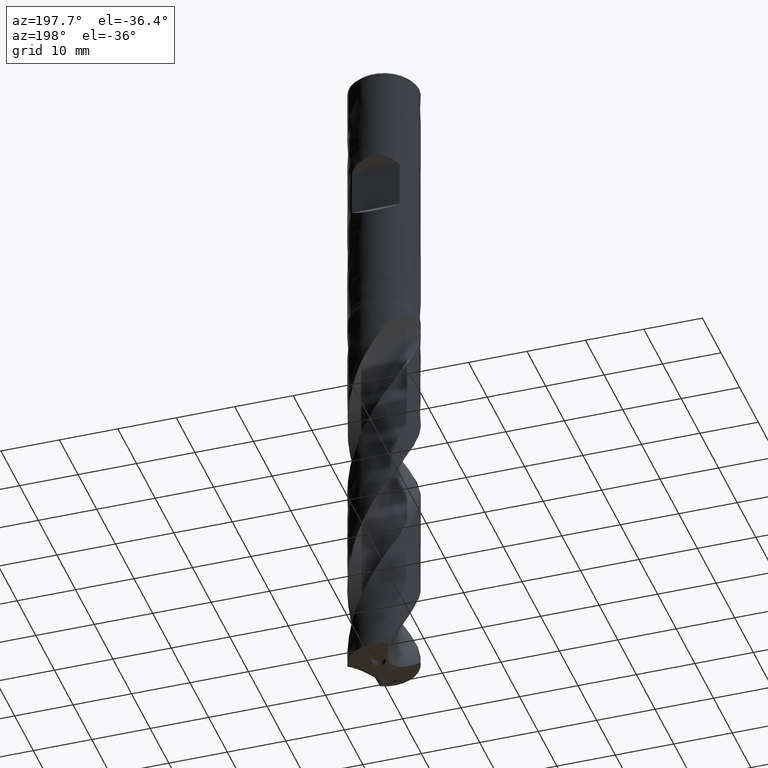
[diagram: clean part render]
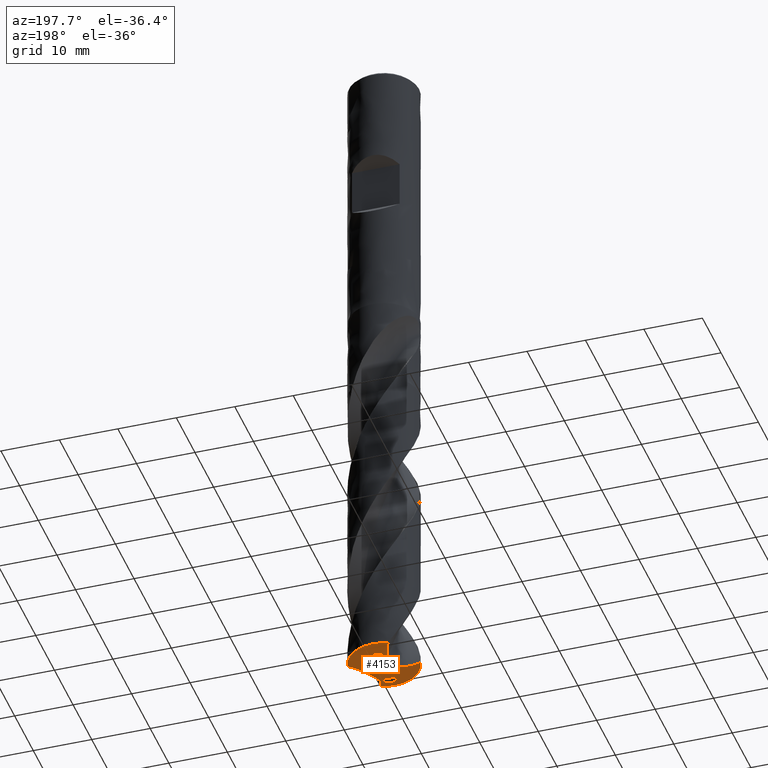
[diagram: same view with one face highlighted and labeled with its STEP entity id]
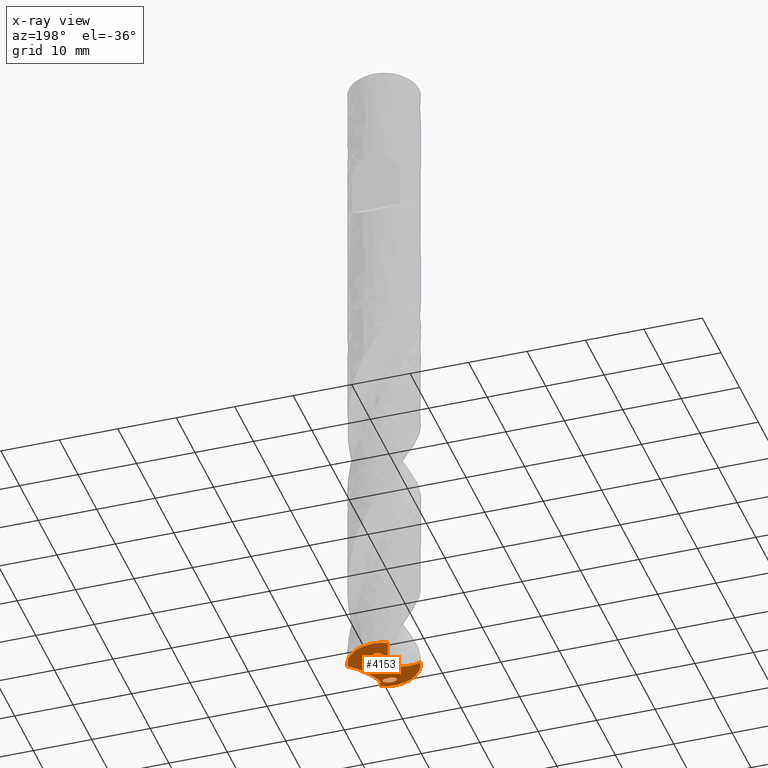
[diagram: x-ray of the same camera — body ghosted, the highlighted face saturated]
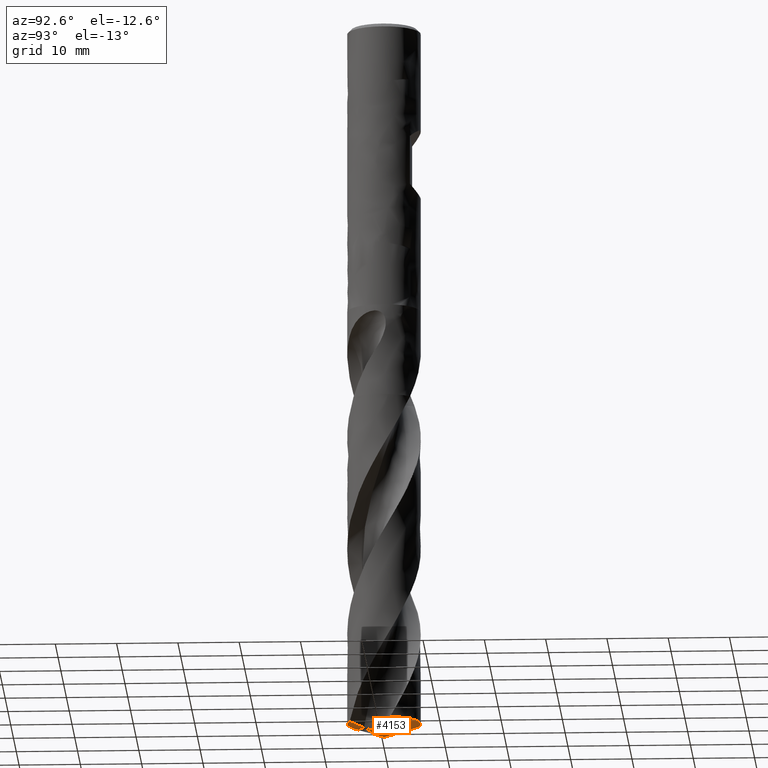
[diagram: same view with one face highlighted and labeled with its STEP entity id]
A machine part, auxiliary view. The second image highlights one B-rep face of the part: STEP entity #4153.
The next image is the same camera in x-ray: the body ghosted, the highlighted face saturated — about 0% of this face is hidden behind the body in this view.
A second angle (auxiliary view) of the same face is appended — the face is thin or edge-on in the first view.
In plain terms, the highlighted face is a freeform B-spline surface patch.
Its self-contained STEP definition (entity closure, byte-faithful):
#2257 = VERTEX_POINT('', #2258);
#2258 = CARTESIAN_POINT('', (-5.86256289667796, -1.27685405685022, -115.816178594403));
#2271 = EDGE_CURVE('', #2272, #2257, #2274, .T.);
#2272 = VERTEX_POINT('', #2273);
#2273 = CARTESIAN_POINT('', (2.41970738305768, -5.49044772130435, -115.816178594403));
#2274 = CIRCLE('', #2275, 6.);
#2275 = AXIS2_PLACEMENT_3D('', #2276, #2277, #2278);
#2276 = CARTESIAN_POINT('', (4.34241117093671E-31, 7.09169562025568E-15, -115.816178594403));
#2277 = DIRECTION('', (3.74939945665464E-33, 6.12323399573677E-17, -1.));
#2278 = DIRECTION('', (-1., 6.12323399573677E-17, 0.));
#2471 = VERTEX_POINT('', #2472);
#2472 = CARTESIAN_POINT('', (-1.63420128733534, 3.19918206194874, -116.692471205152));
#2528 = EDGE_CURVE('', #2471, #2529, #2531, .T.);
#2529 = VERTEX_POINT('', #2530);
#2530 = CARTESIAN_POINT('', (-2.94473803859958, 7.340100677747E-15, -116.928203006238));
#2531 = B_SPLINE_CURVE_WITH_KNOTS('', 3, (#2532, #2533, #2534, #2535, #2536, #2537, #2538, #2539, #2540, #2541, #2542, #2543, #2544, #2545, #2546, #2547, #2548, #2549, #2550, #2551, #2552, #2553, #2554, #2555, #2556, #2557, #2558, #2559, #2560, #2561, #2562, #2563, #2564, #2565, #2566, #2567, #2568, #2569, #2570, #2571, #2572, #2573, #2574, #2575, #2576, #2577, #2578, #2579, #2580, #2581, #2582, #2583, #2584, #2585, #2586, #2587, #2588, #2589, #2590, #2591, #2592, #2593, #2594, #2595, #2596, #2597, #2598, #2599, #2600, #2601, #2602, #2603, #2604, #2605, #2606, #2607, #2608, #2609, #2610), .UNSPECIFIED., .F., .U., (4, 3, 3, 3, 3, 3, 3, 3, 3, 3, 3, 3, 3, 3, 3, 3, 3, 3, 3, 3, 3, 3, 3, 3, 3, 3, 4), (0., 0.19726387637907, 0.394395415769327, 0.591353771202178, 0.78809627632044, 0.984585385994429, 1.11558415544554, 1.24650450982339, 1.37735402444225, 1.50814689729854, 1.63890409836807, 1.76965230705009, 1.9004214308217, 2.03124092304182, 2.16213563070042, 2.29312223964619, 2.4242072984539, 2.55538727326692, 2.68665038268277, 2.81797945243325, 2.94935491707067, 3.08075731985243, 3.21216901496126, 3.34357507439143, 3.47496356802943, 3.51389865968853, 3.73242798382215), .UNSPECIFIED.);
#2532 = CARTESIAN_POINT('', (-1.63420128733534, 3.19918206194874, -116.692471205152));
#2533 = CARTESIAN_POINT('', (-1.61930147634155, 3.13902275451643, -116.714437637064));
#2534 = CARTESIAN_POINT('', (-1.60651322485426, 3.07823429146478, -116.736229533049));
#2535 = CARTESIAN_POINT('', (-1.59592634851408, 3.01700304530372, -116.757731237918));
#2536 = CARTESIAN_POINT('', (-1.58534657451501, 2.95581287690553, -116.779218518094));
#2537 = CARTESIAN_POINT('', (-1.57695300630691, 2.89410820087136, -116.800441570589));
#2538 = CARTESIAN_POINT('', (-1.57082050130043, 2.83208682506079, -116.821264943533));
#2539 = CARTESIAN_POINT('', (-1.56469338382093, 2.7701199362559, -116.842070022731));
#2540 = CARTESIAN_POINT('', (-1.56081612026044, 2.70776008178524, -116.862502053653));
#2541 = CARTESIAN_POINT('', (-1.55924471971094, 2.64521599973314, -116.88240322693));
#2542 = CARTESIAN_POINT('', (-1.55767504128845, 2.58274046090053, -116.902282590141));
#2543 = CARTESIAN_POINT('', (-1.55840458373981, 2.51999978910932, -116.921658147911));
#2544 = CARTESIAN_POINT('', (-1.56146549835352, 2.45721318781768, -116.940348236847));
#2545 = CARTESIAN_POINT('', (-1.56452247064772, 2.39450745282751, -116.959014253794));
#2546 = CARTESIAN_POINT('', (-1.56990955478958, 2.33167019452098, -116.977021856407));
#2547 = CARTESIAN_POINT('', (-1.57762860081351, 2.26893064930408, -116.994166542564));
#2548 = CARTESIAN_POINT('', (-1.58277486837077, 2.22710236053544, -117.005596859454));
#2549 = CARTESIAN_POINT('', (-1.58896073503313, 2.18528447853435, -117.016652313348));
#2550 = CARTESIAN_POINT('', (-1.59617748955468, 2.14354749383134, -117.027267609735));
#2551 = CARTESIAN_POINT('', (-1.6033899241705, 2.10183549263563, -117.037876551869));
#2552 = CARTESIAN_POINT('', (-1.61163686584757, 2.06017675665067, -117.048052737245));
#2553 = CARTESIAN_POINT('', (-1.62090085368385, 2.01864350185656, -117.057728851425));
#2554 = CARTESIAN_POINT('', (-1.6301598288644, 1.97713272031173, -117.067399729952));
#2555 = CARTESIAN_POINT('', (-1.64044113020177, 1.93571906815382, -117.076577471018));
#2556 = CARTESIAN_POINT('', (-1.65171741568937, 1.89447609265749, -117.085195002866));
#2557 = CARTESIAN_POINT('', (-1.66298881993084, 1.8532509703021, -117.093808804381));
#2558 = CARTESIAN_POINT('', (-1.67526226845039, 1.81216765390024, -117.10186865553));
#2559 = CARTESIAN_POINT('', (-1.68849964755679, 1.77130031477474, -117.109310780934));
#2560 = CARTESIAN_POINT('', (-1.70173341636735, 1.73044412160066, -117.11675087661));
#2561 = CARTESIAN_POINT('', (-1.71594000670109, 1.68977481686904, -117.123578603549));
#2562 = CARTESIAN_POINT('', (-1.73107015492098, 1.64936607039433, -117.129737175174));
#2563 = CARTESIAN_POINT('', (-1.74619926261573, 1.6089601028955, -117.135895323265));
#2564 = CARTESIAN_POINT('', (-1.76226258887075, 1.5687857929334, -117.14138855759));
#2565 = CARTESIAN_POINT('', (-1.77920014685605, 1.52891472536978, -117.146171025352));
#2566 = CARTESIAN_POINT('', (-1.79614041425165, 1.48903727984535, -117.15095425814));
#2567 = CARTESIAN_POINT('', (-1.81396713716252, 1.44943485773569, -117.155029694517));
#2568 = CARTESIAN_POINT('', (-1.83261105325609, 1.41017500491139, -117.158366007721));
#2569 = CARTESIAN_POINT('', (-1.85126215044181, 1.37090003033802, -117.161703605976));
#2570 = CARTESIAN_POINT('', (-1.8707438681357, 1.33194062288238, -117.164303724569));
#2571 = CARTESIAN_POINT('', (-1.89098015927998, 1.29335820936959, -117.166152103408));
#2572 = CARTESIAN_POINT('', (-1.91122808539919, 1.25475361267063, -117.168001544984));
#2573 = CARTESIAN_POINT('', (-1.93224473379195, 1.2165007340024, -117.169099632491));
#2574 = CARTESIAN_POINT('', (-1.95395056101966, 1.17865303819895, -117.169450088321));
#2575 = CARTESIAN_POINT('', (-1.97567162792741, 1.14077876949562, -117.169800790207));
#2576 = CARTESIAN_POINT('', (-1.99809620467556, 1.10328654715162, -117.169403171864));
#2577 = CARTESIAN_POINT('', (-2.02114485526382, 1.06622063735984, -117.168278002276));
#2578 = CARTESIAN_POINT('', (-2.04421082927534, 1.02912686873782, -117.167151987007));
#2579 = CARTESIAN_POINT('', (-2.06791487469563, 0.992438679474461, -117.165296915831));
#2580 = CARTESIAN_POINT('', (-2.09218100738102, 0.956190745092842, -117.16274803458));
#2581 = CARTESIAN_POINT('', (-2.11646471067591, 0.919916564324612, -117.160197307737));
#2582 = CARTESIAN_POINT('', (-2.14132374440925, 0.884064402445724, -117.156950728003));
#2583 = CARTESIAN_POINT('', (-2.16668818225538, 0.848659819558322, -117.15305439038));
#2584 = CARTESIAN_POINT('', (-2.19206869467743, 0.813232799207114, -117.149155583475));
#2585 = CARTESIAN_POINT('', (-2.21796681519642, 0.778237555939168, -117.144604687131));
#2586 = CARTESIAN_POINT('', (-2.24432029403383, 0.743691696675212, -117.139454673739));
#2587 = CARTESIAN_POINT('', (-2.27068701561925, 0.70912847795324, -117.13430207244));
#2588 = CARTESIAN_POINT('', (-2.29752011847599, 0.675001092327062, -117.128547926092));
#2589 = CARTESIAN_POINT('', (-2.32476566564891, 0.64132075068194, -117.122248391058));
#2590 = CARTESIAN_POINT('', (-2.35202083791157, 0.607628510714184, -117.115946630575));
#2591 = CARTESIAN_POINT('', (-2.37969827719093, 0.574371758353611, -117.109097084961));
#2592 = CARTESIAN_POINT('', (-2.4077522002025, 0.541556965859814, -117.101756074707));
#2593 = CARTESIAN_POINT('', (-2.4358118755867, 0.508735444791402, -117.0944135592));
#2594 = CARTESIAN_POINT('', (-2.46425672648757, 0.476346035431759, -117.086577285804));
#2595 = CARTESIAN_POINT('', (-2.49304843190056, 0.444392006941569, -117.078301542664));
#2596 = CARTESIAN_POINT('', (-2.52184217336417, 0.412435718772124, -117.070025214291));
#2597 = CARTESIAN_POINT('', (-2.55099045253544, 0.380906388537931, -117.061307255905));
#2598 = CARTESIAN_POINT('', (-2.58046143912588, 0.349805370864429, -117.052198514969));
#2599 = CARTESIAN_POINT('', (-2.60993116183329, 0.31870568697892, -117.043090164668));
#2600 = CARTESIAN_POINT('', (-2.63973041235855, 0.288027059163125, -117.03358900726));
#2601 = CARTESIAN_POINT('', (-2.66983279370213, 0.257769928225887, -117.023741692686));
#2602 = CARTESIAN_POINT('', (-2.6999311510899, 0.227516841930702, -117.013895694457));
#2603 = CARTESIAN_POINT('', (-2.73033874541058, 0.197678938081967, -117.003701637789));
#2604 = CARTESIAN_POINT('', (-2.76103359548553, 0.168256471434801, -116.993201701398));
#2605 = CARTESIAN_POINT('', (-2.77012957313198, 0.159537546329375, -116.990090196163));
#2606 = CARTESIAN_POINT('', (-2.77925112583196, 0.150854787855686, -116.986951691216));
#2607 = CARTESIAN_POINT('', (-2.7883977435201, 0.142208206557434, -116.983787209286));
#2608 = CARTESIAN_POINT('', (-2.83973457351906, 0.093677909422988, -116.966026056866));
#2609 = CARTESIAN_POINT('', (-2.89187366207842, 0.0462737259541124, -116.947444065745));
#2610 = CARTESIAN_POINT('', (-2.94473803859957, 7.3331617838431E-15, -116.928203006238));
#2612 = EDGE_CURVE('', #2529, #2257, #2613, .T.);
#2613 = B_SPLINE_CURVE_WITH_KNOTS('', 3, (#2614, #2615, #2616, #2617, #2618, #2619, #2620, #2621, #2622, #2623, #2624, #2625, #2626, #2627, #2628, #2629, #2630, #2631, #2632, #2633, #2634, #2635, #2636, #2637, #2638, #2639, #2640, #2641, #2642, #2643, #2644, #2645, #2646, #2647, #2648, #2649, #2650, #2651, #2652, #2653, #2654, #2655, #2656, #2657, #2658, #2659), .UNSPECIFIED., .F., .U., (4, 3, 3, 3, 3, 3, 3, 3, 3, 3, 3, 3, 3, 3, 3, 4), (0., 0.198624826603533, 0.396901326527143, 0.594880071947183, 0.792604829773738, 0.99011235511327, 1.18743294915863, 1.38459129772441, 1.58160734738384, 1.77849710995667, 1.97527335581018, 2.26998446904795, 2.56438306108488, 2.8584959857463, 3.15234015284736, 3.42707884463678), .UNSPECIFIED.);
#2614 = CARTESIAN_POINT('', (-2.94473803859957, 7.3331617838431E-15, -116.928203006238));
#2615 = CARTESIAN_POINT('', (-2.99278732288509, -0.0420589357074677, -116.910714496981));
#2616 = CARTESIAN_POINT('', (-3.04145407499668, -0.0831995902231267, -116.892674504953));
#2617 = CARTESIAN_POINT('', (-3.09069223639489, -0.123414310336557, -116.874183547769));
#2618 = CARTESIAN_POINT('', (-3.13984404924554, -0.163558506235161, -116.85572501802));
#2619 = CARTESIAN_POINT('', (-3.18958107106221, -0.202792772979359, -116.836811045241));
#2620 = CARTESIAN_POINT('', (-3.23986451906908, -0.241104613892139, -116.817524983079));
#2621 = CARTESIAN_POINT('', (-3.29007245574149, -0.279358921394876, -116.798267883057));
#2622 = CARTESIAN_POINT('', (-3.34084015557736, -0.316704864877619, -116.778633936407));
#2623 = CARTESIAN_POINT('', (-3.39213320711002, -0.353125064097676, -116.758692602402));
#2624 = CARTESIAN_POINT('', (-3.44336045461562, -0.389498539722559, -116.7387768512));
#2625 = CARTESIAN_POINT('', (-3.49512626765736, -0.424958890064303, -116.718548721173));
#2626 = CARTESIAN_POINT('', (-3.5473985543246, -0.459484083611442, -116.698066611441));
#2627 = CARTESIAN_POINT('', (-3.59961341146729, -0.493971345673715, -116.677607004605));
#2628 = CARTESIAN_POINT('', (-3.65234808869171, -0.527534979642437, -116.656888208489));
#2629 = CARTESIAN_POINT('', (-3.70557133779652, -0.560148632381715, -116.635959914899));
#2630 = CARTESIAN_POINT('', (-3.75874421367723, -0.592731417880346, -116.615051428924));
#2631 = CARTESIAN_POINT('', (-3.81241934066689, -0.624374907261032, -116.593928015252));
#2632 = CARTESIAN_POINT('', (-3.86656521560438, -0.655048766942543, -116.572632570069));
#2633 = CARTESIAN_POINT('', (-3.92066656947458, -0.68569740525728, -116.551354634917));
#2634 = CARTESIAN_POINT('', (-3.97525284796415, -0.715386426127382, -116.529899003123));
#2635 = CARTESIAN_POINT('', (-4.03029143406621, -0.744081832224463, -116.508303314797));
#2636 = CARTESIAN_POINT('', (-4.08529029610552, -0.772756527431367, -116.486723213145));
#2637 = CARTESIAN_POINT('', (-4.1407562830096, -0.800447062494077, -116.464997133214));
#2638 = CARTESIAN_POINT('', (-4.19665495137843, -0.827116059081926, -116.443158697974));
#2639 = CARTESIAN_POINT('', (-4.25251778875793, -0.853767960870202, -116.421334261148));
#2640 = CARTESIAN_POINT('', (-4.30882889661193, -0.879407294549483, -116.399391263989));
#2641 = CARTESIAN_POINT('', (-4.36555137563909, -0.903993553767541, -116.37736031434));
#2642 = CARTESIAN_POINT('', (-4.42224115134208, -0.928565637786998, -116.355342066626));
#2643 = CARTESIAN_POINT('', (-4.47935878474459, -0.952093173780922, -116.333229347897));
#2644 = CARTESIAN_POINT('', (-4.53686433118674, -0.974532761663535, -116.311050568879));
#2645 = CARTESIAN_POINT('', (-4.62299019224179, -1.00814045601098, -116.277833487079));
#2646 = CARTESIAN_POINT('', (-4.71003795308338, -1.0393275501525, -116.244448856181));
#2647 = CARTESIAN_POINT('', (-4.79785753220492, -1.0679368802362, -116.210986289928));
#2648 = CARTESIAN_POINT('', (-4.88558398460306, -1.09651587206052, -116.177559208464));
#2649 = CARTESIAN_POINT('', (-4.97414676894464, -1.12254379486458, -116.144029035211));
#2650 = CARTESIAN_POINT('', (-5.06337321215636, -1.14585213072528, -116.110481720707));
#2651 = CARTESIAN_POINT('', (-5.15251307518546, -1.16913784952423, -116.076966958577));
#2652 = CARTESIAN_POINT('', (-5.24238813636589, -1.18972791536614, -116.043407642931));
#2653 = CARTESIAN_POINT('', (-5.3327984030531, -1.20744482262316, -116.009889378712));
#2654 = CARTESIAN_POINT('', (-5.42312605370861, -1.22514554034081, -115.976401743161));
#2655 = CARTESIAN_POINT('', (-5.51406850729008, -1.2399937009826, -115.942925185944));
#2656 = CARTESIAN_POINT('', (-5.60539339341408, -1.25180598778358, -115.909547698464));
#2657 = CARTESIAN_POINT('', (-5.69078042011282, -1.26285025064836, -115.878340384275));
#2658 = CARTESIAN_POINT('', (-5.77657699480326, -1.27125008324841, -115.847192086438));
#2659 = CARTESIAN_POINT('', (-5.86256289667796, -1.27685405685022, -115.816178594403));
#3156 = VERTEX_POINT('', #3157);
#3157 = CARTESIAN_POINT('', (-2.41970738305768, 5.49044772130436, -115.816178594403));
#3203 = EDGE_CURVE('', #2471, #3156, #3204, .T.);
#3204 = B_SPLINE_CURVE_WITH_KNOTS('', 3, (#3205, #3206, #3207, #3208, #3209, #3210, #3211, #3212, #3213, #3214, #3215, #3216, #3217, #3218, #3219, #3220, #3221, #3222, #3223, #3224, #3225, #3226, #3227, #3228, #3229, #3230, #3231, #3232), .UNSPECIFIED., .F., .U., (4, 3, 3, 3, 3, 3, 3, 3, 3, 4), (0., 0.29585492690882, 0.591643166868457, 0.887386014984026, 1.18309881083323, 1.47879272556632, 1.77447597134269, 2.07015463101469, 2.36583323518551, 2.5786692111377), .UNSPECIFIED.);
#3205 = CARTESIAN_POINT('', (-1.63420128733534, 3.19918206194874, -116.692471205152));
#3206 = CARTESIAN_POINT('', (-1.65654791548358, 3.28940855364087, -116.659526110353));
#3207 = CARTESIAN_POINT('', (-1.67979741074082, 3.37936878273094, -116.626450716143));
#3208 = CARTESIAN_POINT('', (-1.70394224031323, 3.46904741724292, -116.593279334185));
#3209 = CARTESIAN_POINT('', (-1.72808162753915, 3.55870583781219, -116.560115429197));
#3210 = CARTESIAN_POINT('', (-1.75311814411562, 3.64809094614203, -116.526852377252));
#3211 = CARTESIAN_POINT('', (-1.77904332540445, 3.73718546019046, -116.493517117686));
#3212 = CARTESIAN_POINT('', (-1.80496452819912, 3.82626630174032, -116.46018697377));
#3213 = CARTESIAN_POINT('', (-1.83177646026053, 3.91506465983394, -116.426781517045));
#3214 = CARTESIAN_POINT('', (-1.8594698486876, 4.00356193647428, -116.393322410008));
#3215 = CARTESIAN_POINT('', (-1.88716042301759, 4.09205022035707, -116.359866702958));
#3216 = CARTESIAN_POINT('', (-1.91573474925358, 4.18024538325685, -116.326354282778));
#3217 = CARTESIAN_POINT('', (-1.94518283128398, 4.26812796254345, -116.29280295869));
#3218 = CARTESIAN_POINT('', (-1.97462903306886, 4.35600493057072, -116.259253776837));
#3219 = CARTESIAN_POINT('', (-2.00495148898726, 4.44357713711471, -116.225662663561));
#3220 = CARTESIAN_POINT('', (-2.03613954190784, 4.53082458113395, -116.192044561602));
#3221 = CARTESIAN_POINT('', (-2.06732646952968, 4.61806887717091, -116.158427672619));
#3222 = CARTESIAN_POINT('', (-2.09938167407253, 4.70499610121251, -116.124780798558));
#3223 = CARTESIAN_POINT('', (-2.13229388568928, 4.79158595342871, -116.091116712502));
#3224 = CARTESIAN_POINT('', (-2.16520558683125, 4.87817446261954, -116.057453148583));
#3225 = CARTESIAN_POINT('', (-2.19897714007485, 4.96443316250175, -116.023769405019));
#3226 = CARTESIAN_POINT('', (-2.23359670256178, 5.05034163330164, -115.990076585758));
#3227 = CARTESIAN_POINT('', (-2.26821625855034, 5.13625008797584, -115.956383772821));
#3228 = CARTESIAN_POINT('', (-2.30368682072028, 5.22181574972726, -115.922678944049));
#3229 = CARTESIAN_POINT('', (-2.33999600748962, 5.30701821438347, -115.88897189942));
#3230 = CARTESIAN_POINT('', (-2.36613216037006, 5.36834882628044, -115.864708825803));
#3231 = CARTESIAN_POINT('', (-2.39270421252, 5.42949451993937, -115.840443284977));
#3232 = CARTESIAN_POINT('', (-2.41970738305769, 5.49044772130435, -115.816178594403));
#3490 = VERTEX_POINT('', #3491);
#3491 = CARTESIAN_POINT('', (1.63420128733535, -3.19918206194873, -116.692471205152));
#3547 = EDGE_CURVE('', #3490, #3548, #3550, .T.);
#3548 = VERTEX_POINT('', #3549);
#3549 = CARTESIAN_POINT('', (5.86256289667796, 1.27685405685023, -115.816178594403));
#3550 = B_SPLINE_CURVE_WITH_KNOTS('', 3, (#3551, #3552, #3553, #3554, #3555, #3556, #3557, #3558, #3559, #3560, #3561, #3562, #3563, #3564, #3565, #3566, #3567, #3568, #3569, #3570, #3571, #3572, #3573, #3574, #3575, #3576, #3577, #3578, #3579, #3580, #3581, #3582, #3583, #3584, #3585, #3586, #3587, #3588, #3589, #3590, #3591, #3592, #3593, #3594, #3595, #3596, #3597, #3598, #3599, #3600, #3601, #3602, #3603, #3604, #3605, #3606, #3607, #3608, #3609, #3610, #3611, #3612, #3613, #3614, #3615, #3616, #3617, #3618, #3619, #3620, #3621, #3622, #3623, #3624, #3625, #3626, #3627, #3628, #3629, #3630, #3631, #3632, #3633, #3634, #3635, #3636, #3637, #3638, #3639, #3640, #3641, #3642, #3643, #3644, #3645, #3646, #3647, #3648, #3649, #3650, #3651, #3652, #3653, #3654, #3655, #3656, #3657, #3658, #3659, #3660, #3661, #3662, #3663, #3664, #3665, #3666, #3667, #3668, #3669, #3670, #3671, #3672, #3673, #3674, #3675, #3676, #3677), .UNSPECIFIED., .F., .U., (4, 3, 3, 3, 3, 3, 3, 3, 3, 3, 3, 3, 3, 3, 3, 3, 3, 3, 3, 3, 3, 3, 3, 3, 3, 3, 3, 3, 3, 3, 3, 3, 3, 3, 3, 3, 3, 3, 3, 3, 3, 3, 4), (0., 0.19726387637906, 0.394395415769335, 0.591353771202187, 0.788096276320447, 0.984585385994436, 1.11558415544555, 1.24650450982341, 1.37735402444227, 1.50814689729857, 1.63890409836809, 1.76965230705011, 1.90042143082172, 2.03124092304184, 2.16213563070044, 2.29312223964621, 2.42420729845392, 2.55538727326694, 2.6866503826828, 2.81797945243327, 2.94935491707069, 3.08075731985245, 3.21216901496126, 3.34357507439145, 3.47496356802944, 3.51389865968854, 3.71197784269769, 3.75094520083363, 3.949535298904, 4.14778203448654, 4.34573539028338, 4.54343847225153, 4.74092740402816, 4.93823192667187, 5.13537624827269, 5.33237991659501, 5.5292586141627, 5.72602484058846, 6.02071553287883, 6.31509571221837, 6.60919153918554, 6.90301938126331, 7.15951768150771), .UNSPECIFIED.);
#3551 = CARTESIAN_POINT('', (1.63420128733535, -3.19918206194873, -116.692471205152));
#3552 = CARTESIAN_POINT('', (1.61930147634155, -3.13902275451641, -116.714437637064));
#3553 = CARTESIAN_POINT('', (1.60651322485426, -3.07823429146476, -116.736229533049));
#3554 = CARTESIAN_POINT('', (1.59592634851408, -3.0170030453037, -116.757731237918));
#3555 = CARTESIAN_POINT('', (1.585346574515, -2.95581287690551, -116.779218518094));
#3556 = CARTESIAN_POINT('', (1.57695300630691, -2.89410820087135, -116.800441570589));
#3557 = CARTESIAN_POINT('', (1.57082050130044, -2.83208682506077, -116.821264943533));
#3558 = CARTESIAN_POINT('', (1.56469338382093, -2.77011993625588, -116.842070022731));
#3559 = CARTESIAN_POINT('', (1.56081612026044, -2.70776008178522, -116.862502053654));
#3560 = CARTESIAN_POINT('', (1.55924471971094, -2.64521599973312, -116.88240322693));
#3561 = CARTESIAN_POINT('', (1.55767504128845, -2.58274046090051, -116.902282590141));
#3562 = CARTESIAN_POINT('', (1.55840458373981, -2.51999978910928, -116.921658147911));
#3563 = CARTESIAN_POINT('', (1.56146549835353, -2.45721318781765, -116.940348236847));
#3564 = CARTESIAN_POINT('', (1.56452247064772, -2.39450745282747, -116.959014253794));
#3565 = CARTESIAN_POINT('', (1.56990955478958, -2.33167019452096, -116.977021856407));
#3566 = CARTESIAN_POINT('', (1.5776286008135, -2.26893064930405, -116.994166542564));
#3567 = CARTESIAN_POINT('', (1.58277486837077, -2.22710236053541, -117.005596859454));
#3568 = CARTESIAN_POINT('', (1.58896073503313, -2.18528447853431, -117.016652313348));
#3569 = CARTESIAN_POINT('', (1.59617748955468, -2.1435474938313, -117.027267609735));
#3570 = CARTESIAN_POINT('', (1.60338992417051, -2.1018354926356, -117.037876551869));
#3571 = CARTESIAN_POINT('', (1.61163686584757, -2.06017675665064, -117.048052737245));
#3572 = CARTESIAN_POINT('', (1.62090085368385, -2.01864350185653, -117.057728851425));
#3573 = CARTESIAN_POINT('', (1.6301598288644, -1.9771327203117, -117.067399729952));
#3574 = CARTESIAN_POINT('', (1.64044113020178, -1.93571906815378, -117.076577471018));
#3575 = CARTESIAN_POINT('', (1.65171741568937, -1.89447609265745, -117.085195002866));
#3576 = CARTESIAN_POINT('', (1.66298881993085, -1.85325097030206, -117.093808804381));
#3577 = CARTESIAN_POINT('', (1.6752622684504, -1.8121676539002, -117.10186865553));
#3578 = CARTESIAN_POINT('', (1.6884996475568, -1.77130031477469, -117.109310780934));
#3579 = CARTESIAN_POINT('', (1.70173341636736, -1.73044412160061, -117.11675087661));
#3580 = CARTESIAN_POINT('', (1.7159400067011, -1.68977481686899, -117.123578603549));
#3581 = CARTESIAN_POINT('', (1.73107015492099, -1.64936607039429, -117.129737175174));
#3582 = CARTESIAN_POINT('', (1.74619926261574, -1.60896010289546, -117.135895323265));
#3583 = CARTESIAN_POINT('', (1.76226258887076, -1.56878579293336, -117.14138855759));
#3584 = CARTESIAN_POINT('', (1.77920014685606, -1.52891472536974, -117.146171025352));
#3585 = CARTESIAN_POINT('', (1.79614041425166, -1.48903727984531, -117.15095425814));
#3586 = CARTESIAN_POINT('', (1.81396713716253, -1.44943485773565, -117.155029694517));
#3587 = CARTESIAN_POINT('', (1.8326110532561, -1.41017500491135, -117.158366007721));
#3588 = CARTESIAN_POINT('', (1.85126215044182, -1.37090003033798, -117.161703605976));
#3589 = CARTESIAN_POINT('', (1.87074386813571, -1.33194062288234, -117.164303724569));
#3590 = CARTESIAN_POINT('', (1.89098015928, -1.29335820936954, -117.166152103408));
#3591 = CARTESIAN_POINT('', (1.91122808539921, -1.25475361267059, -117.168001544984));
#3592 = CARTESIAN_POINT('', (1.93224473379196, -1.21650073400236, -117.169099632491));
#3593 = CARTESIAN_POINT('', (1.95395056101968, -1.17865303819891, -117.169450088321));
#3594 = CARTESIAN_POINT('', (1.97567162792742, -1.14077876949558, -117.169800790207));
#3595 = CARTESIAN_POINT('', (1.99809620467557, -1.10328654715158, -117.169403171864));
#3596 = CARTESIAN_POINT('', (2.02114485526383, -1.0662206373598, -117.168278002276));
#3597 = CARTESIAN_POINT('', (2.04421082927535, -1.02912686873779, -117.167151987007));
#3598 = CARTESIAN_POINT('', (2.06791487469565, -0.992438679474421, -117.165296915831));
#3599 = CARTESIAN_POINT('', (2.09218100738104, -0.956190745092802, -117.16274803458));
#3600 = CARTESIAN_POINT('', (2.11646471067592, -0.919916564324573, -117.160197307737));
#3601 = CARTESIAN_POINT('', (2.14132374440927, -0.884064402445685, -117.156950728003));
#3602 = CARTESIAN_POINT('', (2.1666881822554, -0.848659819558283, -117.15305439038));
#3603 = CARTESIAN_POINT('', (2.19206869467746, -0.813232799207075, -117.149155583475));
#3604 = CARTESIAN_POINT('', (2.21796681519644, -0.778237555939131, -117.144604687131));
#3605 = CARTESIAN_POINT('', (2.24432029403384, -0.743691696675175, -117.139454673739));
#3606 = CARTESIAN_POINT('', (2.27068701561927, -0.709128477953203, -117.13430207244));
#3607 = CARTESIAN_POINT('', (2.29752011847601, -0.675001092327025, -117.128547926092));
#3608 = CARTESIAN_POINT('', (2.32476566564894, -0.641320750681902, -117.122248391058));
#3609 = CARTESIAN_POINT('', (2.35202083791159, -0.607628510714148, -117.115946630575));
#3610 = CARTESIAN_POINT('', (2.37969827719095, -0.574371758353575, -117.109097084961));
#3611 = CARTESIAN_POINT('', (2.40775220020252, -0.54155696585978, -117.101756074707));
#3612 = CARTESIAN_POINT('', (2.43581187558672, -0.508735444791369, -117.0944135592));
#3613 = CARTESIAN_POINT('', (2.46425672648758, -0.476346035431728, -117.086577285804));
#3614 = CARTESIAN_POINT('', (2.49304843190058, -0.44439200694154, -117.078301542664));
#3615 = CARTESIAN_POINT('', (2.52184217336419, -0.412435718772097, -117.070025214291));
#3616 = CARTESIAN_POINT('', (2.55099045253546, -0.380906388537901, -117.061307255905));
#3617 = CARTESIAN_POINT('', (2.58046143912589, -0.349805370864401, -117.05219851497));
#3618 = CARTESIAN_POINT('', (2.60993116183331, -0.318705686978891, -117.043090164668));
#3619 = CARTESIAN_POINT('', (2.63973041235857, -0.288027059163097, -117.03358900726));
#3620 = CARTESIAN_POINT('', (2.66983279370214, -0.257769928225859, -117.023741692686));
#3621 = CARTESIAN_POINT('', (2.69993115108992, -0.227516841930674, -117.013895694457));
#3622 = CARTESIAN_POINT('', (2.7303387454106, -0.197678938081945, -117.003701637789));
#3623 = CARTESIAN_POINT('', (2.76103359548555, -0.168256471434778, -116.993201701398));
#3624 = CARTESIAN_POINT('', (2.77012957313199, -0.159537546329353, -116.990090196163));
#3625 = CARTESIAN_POINT('', (2.77925112583197, -0.150854787855657, -116.986951691216));
#3626 = CARTESIAN_POINT('', (2.78839774352011, -0.142208206557406, -116.983787209286));
#3627 = CARTESIAN_POINT('', (2.83493043374275, -0.0982194117094209, -116.96768815908));
#3628 = CARTESIAN_POINT('', (2.88212159211185, -0.0551566833750117, -116.950914659754));
#3629 = CARTESIAN_POINT('', (2.9299132200835, -0.0130230735622243, -116.9335882646));
#3630 = CARTESIAN_POINT('', (2.93931508379668, -0.00473429006568254, -116.93017970932));
#3631 = CARTESIAN_POINT('', (2.94874062618702, 0.00351888581366062, -116.926749548853));
#3632 = CARTESIAN_POINT('', (2.95818946266346, 0.0117364136205896, -116.923298614455));
#3633 = CARTESIAN_POINT('', (3.00634375005346, 0.0536155589139679, -116.905711550994));
#3634 = CARTESIAN_POINT('', (3.05511212510034, 0.0945774936911436, -116.887582779867));
#3635 = CARTESIAN_POINT('', (3.10444935898701, 0.134614128211845, -116.869011074118));
#3636 = CARTESIAN_POINT('', (3.15370128874456, 0.174581539349474, -116.850471478869));
#3637 = CARTESIAN_POINT('', (3.20353581665272, 0.213639448359547, -116.83148444217));
#3638 = CARTESIAN_POINT('', (3.25391467411767, 0.251774899495775, -116.81213189151));
#3639 = CARTESIAN_POINT('', (3.30421897732393, 0.289853915047079, -116.792807980147));
#3640 = CARTESIAN_POINT('', (3.35508092279191, 0.32702438168813, -116.773113774398));
#3641 = CARTESIAN_POINT('', (3.40646639105437, 0.363268473809684, -116.753117591399));
#3642 = CARTESIAN_POINT('', (3.45778689230563, 0.39946674226906, -116.733146689715));
#3643 = CARTESIAN_POINT('', (3.50964413277578, 0.434751140672157, -116.712868798672));
#3644 = CARTESIAN_POINT('', (3.56200615439241, 0.469099220551281, -116.69234141445));
#3645 = CARTESIAN_POINT('', (3.61431145794049, 0.503410094900725, -116.671836265304));
#3646 = CARTESIAN_POINT('', (3.66713491229918, 0.536796091810613, -116.651076393185));
#3647 = CARTESIAN_POINT('', (3.72044528737788, 0.569230473300428, -116.630110782636));
#3648 = CARTESIAN_POINT('', (3.77370588285651, 0.601634568555396, -116.609164749133));
#3649 = CARTESIAN_POINT('', (3.82746711807025, 0.633097664615801, -116.588007525845));
#3650 = CARTESIAN_POINT('', (3.88169741957611, 0.663589073869153, -116.566681459638));
#3651 = CARTESIAN_POINT('', (3.93588368888878, 0.694055725679056, -116.545372709092));
#3652 = CARTESIAN_POINT('', (3.99055325501529, 0.723560646871654, -116.523889427607));
#3653 = CARTESIAN_POINT('', (4.04567335929467, 0.752069513858284, -116.502268832986));
#3654 = CARTESIAN_POINT('', (4.10075413795048, 0.780558041097993, -116.480663663652));
#3655 = CARTESIAN_POINT('', (4.15630033846237, 0.808059921129218, -116.458915234243));
#3656 = CARTESIAN_POINT('', (4.21227731443617, 0.834537474041372, -116.437056847839));
#3657 = CARTESIAN_POINT('', (4.26821878099541, 0.860998230719239, -116.415212327465));
#3658 = CARTESIAN_POINT('', (4.32460669033507, 0.886443588057747, -116.393251617202));
#3659 = CARTESIAN_POINT('', (4.38140388411345, 0.910832760525276, -116.371205088215));
#3660 = CARTESIAN_POINT('', (4.43816863128729, 0.935208000159482, -116.349171153777));
#3661 = CARTESIAN_POINT('', (4.49535923934147, 0.958535541063027, -116.327044851255));
#3662 = CARTESIAN_POINT('', (4.55293545059774, 0.980771725336699, -116.304854423091));
#3663 = CARTESIAN_POINT('', (4.63916556164257, 1.01407417086577, -116.271620505074));
#3664 = CARTESIAN_POINT('', (4.72631264427194, 1.04494835308646, -116.238223282194));
#3665 = CARTESIAN_POINT('', (4.81422534557, 1.07323634414242, -116.204752029628));
#3666 = CARTESIAN_POINT('', (4.90204541403977, 1.10149452839482, -116.171316045422));
#3667 = CARTESIAN_POINT('', (4.9906960222673, 1.12719305629408, -116.137780743496));
#3668 = CARTESIAN_POINT('', (5.08000294118624, 1.15016277616015, -116.104231963405));
#3669 = CARTESIAN_POINT('', (5.16922359534945, 1.17311030875006, -116.070715589284));
#3670 = CARTESIAN_POINT('', (5.25917256941931, 1.19335277990882, -116.037158174708));
#3671 = CARTESIAN_POINT('', (5.34964801010401, 1.21071222012235, -116.00364539828));
#3672 = CARTESIAN_POINT('', (5.44004100809914, 1.2280558421323, -115.970163159238));
#3673 = CARTESIAN_POINT('', (5.53104060587294, 1.24253680214114, -115.936695415798));
#3674 = CARTESIAN_POINT('', (5.62241224818219, 1.25397155225097, -115.903330387492));
#3675 = CARTESIAN_POINT('', (5.70217552308878, 1.26395356738661, -115.874204240059));
#3676 = CARTESIAN_POINT('', (5.78228575212219, 1.27162214104647, -115.845133045412));
#3677 = CARTESIAN_POINT('', (5.86256289667797, 1.27685405685023, -115.816178594403));
#4015 = EDGE_CURVE('', #3490, #2272, #4016, .T.);
#4016 = B_SPLINE_CURVE_WITH_KNOTS('', 3, (#4017, #4018, #4019, #4020, #4021, #4022, #4023, #4024, #4025, #4026, #4027, #4028, #4029, #4030, #4031, #4032, #4033, #4034, #4035, #4036, #4037, #4038, #4039, #4040, #4041, #4042, #4043, #4044), .UNSPECIFIED., .F., .U., (4, 3, 3, 3, 3, 3, 3, 3, 3, 4), (0., 0.295854926908829, 0.591643166868463, 0.887386014984026, 1.18309881083323, 1.47879272556632, 1.77447597134269, 2.07015463101469, 2.36583323518551, 2.5786692111377), .UNSPECIFIED.);
#4017 = CARTESIAN_POINT('', (1.63420128733535, -3.19918206194873, -116.692471205152));
#4018 = CARTESIAN_POINT('', (1.65654791548359, -3.28940855364086, -116.659526110353));
#4019 = CARTESIAN_POINT('', (1.67979741074082, -3.37936878273092, -116.626450716143));
#4020 = CARTESIAN_POINT('', (1.70394224031323, -3.46904741724291, -116.593279334185));
#4021 = CARTESIAN_POINT('', (1.72808162753915, -3.55870583781218, -116.560115429197));
#4022 = CARTESIAN_POINT('', (1.75311814411561, -3.64809094614202, -116.526852377252));
#4023 = CARTESIAN_POINT('', (1.77904332540444, -3.73718546019045, -116.493517117686));
#4024 = CARTESIAN_POINT('', (1.80496452819911, -3.8262663017403, -116.46018697377));
#4025 = CARTESIAN_POINT('', (1.83177646026052, -3.91506465983393, -116.426781517045));
#4026 = CARTESIAN_POINT('', (1.85946984868759, -4.00356193647427, -116.393322410008));
#4027 = CARTESIAN_POINT('', (1.88716042301759, -4.09205022035706, -116.359866702958));
#4028 = CARTESIAN_POINT('', (1.91573474925357, -4.18024538325685, -116.326354282778));
#4029 = CARTESIAN_POINT('', (1.94518283128396, -4.26812796254344, -116.29280295869));
#4030 = CARTESIAN_POINT('', (1.97462903306885, -4.35600493057072, -116.259253776837));
#4031 = CARTESIAN_POINT('', (2.00495148898726, -4.4435771371147, -116.225662663561));
#4032 = CARTESIAN_POINT('', (2.03613954190783, -4.53082458113394, -116.192044561602));
#4033 = CARTESIAN_POINT('', (2.06732646952968, -4.6180688771709, -116.158427672619));
#4034 = CARTESIAN_POINT('', (2.09938167407252, -4.70499610121249, -116.124780798558));
#4035 = CARTESIAN_POINT('', (2.13229388568927, -4.79158595342869, -116.091116712502));
#4036 = CARTESIAN_POINT('', (2.16520558683124, -4.87817446261952, -116.057453148583));
#4037 = CARTESIAN_POINT('', (2.19897714007485, -4.96443316250172, -116.023769405019));
#4038 = CARTESIAN_POINT('', (2.23359670256178, -5.05034163330161, -115.990076585758));
#4039 = CARTESIAN_POINT('', (2.26821625855034, -5.13625008797581, -115.956383772821));
#4040 = CARTESIAN_POINT('', (2.30368682072028, -5.22181574972725, -115.922678944049));
#4041 = CARTESIAN_POINT('', (2.33999600748962, -5.30701821438346, -115.88897189942));
#4042 = CARTESIAN_POINT('', (2.36613216037006, -5.36834882628042, -115.864708825803));
#4043 = CARTESIAN_POINT('', (2.39270421251999, -5.42949451993936, -115.840443284977));
#4044 = CARTESIAN_POINT('', (2.41970738305768, -5.49044772130435, -115.816178594403));
#4153 = ADVANCED_FACE('', (#4154, #4178, #4396), #4614, .T.);
#4154 = FACE_OUTER_BOUND('', #4155, .T.);
#4155 = EDGE_LOOP('', (#4156, #4157, #4165, #4166, #4167, #4168, #4175, #4176, #4177));
#4156 = ORIENTED_EDGE('', *, *, #2612, .F.);
#4157 = ORIENTED_EDGE('', *, *, #4158, .T.);
#4158 = EDGE_CURVE('', #2529, #4159, #4161, .T.);
#4159 = VERTEX_POINT('', #4160);
#4160 = CARTESIAN_POINT('', (8.88178419700126E-16, 7.22541611496938E-15, -118.));
#4161 = LINE('', #4162, #4163);
#4162 = CARTESIAN_POINT('', (-2.94473803859958, 7.340100677747E-15, -116.928203006238));
#4163 = VECTOR('', #4164, 3.13372476644199);
#4164 = DIRECTION('', (2.94473803859958, -1.14684562777622E-16, -1.07179699376169));
#4165 = ORIENTED_EDGE('', *, *, #4158, .F.);
#4166 = ORIENTED_EDGE('', *, *, #2528, .F.);
#4167 = ORIENTED_EDGE('', *, *, #3203, .T.);
#4168 = ORIENTED_EDGE('', *, *, #4169, .T.);
#4169 = EDGE_CURVE('', #3156, #3548, #4170, .T.);
#4170 = CIRCLE('', #4171, 6.);
#4171 = AXIS2_PLACEMENT_3D('', #4172, #4173, #4174);
#4172 = CARTESIAN_POINT('', (4.34241117093671E-31, 7.09169562025568E-15, -115.816178594403));
#4173 = DIRECTION('', (3.74939945665464E-33, 6.12323399573677E-17, -1.));
#4174 = DIRECTION('', (-1., 6.12323399573677E-17, 0.));
#4175 = ORIENTED_EDGE('', *, *, #3547, .F.);
#4176 = ORIENTED_EDGE('', *, *, #4015, .T.);
#4177 = ORIENTED_EDGE('', *, *, #2271, .T.);
#4178 = FACE_BOUND('', #4179, .T.);
#4179 = EDGE_LOOP('', (#4180, #4281));
#4180 = ORIENTED_EDGE('', *, *, #4181, .F.);
#4181 = EDGE_CURVE('', #4182, #4184, #4186, .T.);
#4182 = VERTEX_POINT('', #4183);
#4183 = CARTESIAN_POINT('', (-1.20000000000001, 3., -116.823976182151));
#4184 = VERTEX_POINT('', #4185);
#4185 = CARTESIAN_POINT('', (1.19999999999999, 3.00000000000001, -116.823976182151));
#4186 = B_SPLINE_CURVE_WITH_KNOTS('', 3, (#4187, #4188, #4189, #4190, #4191, #4192, #4193, #4194, #4195, #4196, #4197, #4198, #4199, #4200, #4201, #4202, #4203, #4204, #4205, #4206, #4207, #4208, #4209, #4210, #4211, #4212, #4213, #4214, #4215, #4216, #4217, #4218, #4219, #4220, #4221, #4222, #4223, #4224, #4225, #4226, #4227, #4228, #4229, #4230, #4231, #4232, #4233, #4234, #4235, #4236, #4237, #4238, #4239, #4240, #4241, #4242, #4243, #4244, #4245, #4246, #4247, #4248, #4249, #4250, #4251, #4252, #4253, #4254, #4255, #4256, #4257, #4258, #4259, #4260, #4261, #4262, #4263, #4264, #4265, #4266, #4267, #4268, #4269, #4270, #4271, #4272, #4273, #4274, #4275, #4276, #4277, #4278, #4279, #4280), .UNSPECIFIED., .F., .U., (4, 3, 3, 3, 3, 3, 3, 3, 3, 3, 3, 3, 3, 3, 3, 3, 3, 3, 3, 3, 3, 3, 3, 3, 3, 3, 3, 3, 3, 3, 3, 4), (0., 0.132788305134106, 0.265445476840531, 0.397970514605237, 0.530356029553544, 0.662589462299788, 0.794654229571562, 0.926530851534567, 1.05819809053774, 1.1896341090922, 1.32081763137265, 1.45172907025669, 1.58235156352801, 1.71267185132928, 1.84268092475373, 1.90073229938001, 1.92660970811414, 2.05992089339617, 2.19288768978502, 2.32551661397706, 2.45781879492039, 2.58980970978526, 2.72150858590242, 2.8529375548448, 2.98412064718512, 3.11508270784939, 3.24584829516201, 3.37644060519026, 3.50688044014655, 3.63718521791392, 3.76736800076427, 3.85151907320695), .UNSPECIFIED.);
#4187 = CARTESIAN_POINT('', (-1.20000000000001, 3., -116.823976182151));
#4188 = CARTESIAN_POINT('', (-1.20000000000001, 3.04193306470591, -116.809805411217));
#4189 = CARTESIAN_POINT('', (-1.1977967006788, 3.08399741059712, -116.795847303481));
#4190 = CARTESIAN_POINT('', (-1.19338077909005, 3.12586626274919, -116.782183792934));
#4191 = CARTESIAN_POINT('', (-1.18896921838936, 3.16769376784069, -116.768533775615));
#4192 = CARTESIAN_POINT('', (-1.18233792780671, 3.20943247351367, -116.755142992095));
#4193 = CARTESIAN_POINT('', (-1.17350980828542, 3.25074833969129, -116.742089696323));
#4194 = CARTESIAN_POINT('', (-1.16469048206355, 3.29202305296189, -116.729049402362));
#4195 = CARTESIAN_POINT('', (-1.15365553309079, 3.33298285359565, -116.716312005386));
#4196 = CARTESIAN_POINT('', (-1.14046263735133, 3.3732893955173, -116.703952316171));
#4197 = CARTESIAN_POINT('', (-1.12728363113796, 3.41355350257274, -116.691605639279));
#4198 = CARTESIAN_POINT('', (-1.11191595917593, 3.45327250363538, -116.679603046985));
#4199 = CARTESIAN_POINT('', (-1.09445431522248, 3.49210745969852, -116.668015893321));
#4200 = CARTESIAN_POINT('', (-1.07701273090519, 3.53089780283224, -116.65644205078));
#4201 = CARTESIAN_POINT('', (-1.05743434128442, 3.56891134316109, -116.645251215157));
#4202 = CARTESIAN_POINT('', (-1.03585260788711, 3.60581298660023, -116.634511061054));
#4203 = CARTESIAN_POINT('', (-1.01429840227327, 3.64266756151011, -116.623784606159));
#4204 = CARTESIAN_POINT('', (-0.990685814162505, 3.67851530373262, -116.613477844374));
#4205 = CARTESIAN_POINT('', (-0.965188135997819, 3.71303005696049, -116.603654376357));
#4206 = CARTESIAN_POINT('', (-0.939726782953226, 3.74749563894431, -116.593844903286));
#4207 = CARTESIAN_POINT('', (-0.912313150781745, 3.78072972854564, -116.58448945552));
#4208 = CARTESIAN_POINT('', (-0.883160546827958, 3.81242073368826, -116.575647030625));
#4209 = CARTESIAN_POINT('', (-0.854054229004435, 3.84406142243395, -116.566818645012));
#4210 = CARTESIAN_POINT('', (-0.823129847399406, 3.87425546475728, -116.558476029582));
#4211 = CARTESIAN_POINT('', (-0.790639855853282, 3.90271181355753, -116.550672954779));
#4212 = CARTESIAN_POINT('', (-0.758206919885149, 3.93111819024788, -116.542883582934));
#4213 = CARTESIAN_POINT('', (-0.724117860588762, 3.95787669411314, -116.535608821808));
#4214 = CARTESIAN_POINT('', (-0.68866222449751, 3.98272292155529, -116.528896539246));
#4215 = CARTESIAN_POINT('', (-0.653274700755554, 4.00752141794227, -116.522197151371));
#4216 = CARTESIAN_POINT('', (-0.616419414742426, 4.03048926144638, -116.516037942829));
#4217 = CARTESIAN_POINT('', (-0.578419695773532, 4.05139462407816, -116.510460198745));
#4218 = CARTESIAN_POINT('', (-0.540498790762518, 4.07225662759007, -116.504894023276));
#4219 = CARTESIAN_POINT('', (-0.501322633675644, 4.09112803451387, -116.499889940298));
#4220 = CARTESIAN_POINT('', (-0.461243781224988, 4.10781504515908, -116.495482015763));
#4221 = CARTESIAN_POINT('', (-0.421253390169892, 4.12446522450401, -116.491083820327));
#4222 = CARTESIAN_POINT('', (-0.380241183511097, 4.13899171633511, -116.487265610436));
#4223 = CARTESIAN_POINT('', (-0.338583248204495, 4.15124340781396, -116.484053686722));
#4224 = CARTESIAN_POINT('', (-0.29702169182625, 4.1634667540355, -116.480849194048));
#4225 = CARTESIAN_POINT('', (-0.254688597063323, 4.17346357563256, -116.478238246925));
#4226 = CARTESIAN_POINT('', (-0.21197693969952, 4.18112902641313, -116.476238965979));
#4227 = CARTESIAN_POINT('', (-0.169367280896751, 4.1887761715367, -116.474244459462));
#4228 = CARTESIAN_POINT('', (-0.126248414201641, 4.19412678130396, -116.472852492348));
#4229 = CARTESIAN_POINT('', (-0.0830228977450269, 4.19712455427582, -116.472072753709));
#4230 = CARTESIAN_POINT('', (-0.0637219321805308, 4.1984631134798, -116.471724586473));
#4231 = CARTESIAN_POINT('', (-0.0443803660435112, 4.19933515429485, -116.471497867999));
#4232 = CARTESIAN_POINT('', (-0.0250344037431993, 4.19973883767645, -116.471392914241));
#4233 = CARTESIAN_POINT('', (-0.01641060496112, 4.19991878655677, -116.47134612928));
#4234 = CARTESIAN_POINT('', (-0.00778419945571227, 4.20000575444964, -116.471323520047));
#4235 = CARTESIAN_POINT('', (0.000841601190894523, 4.19999970487807, -116.471325092807));
#4236 = CARTESIAN_POINT('', (0.0452786512842905, 4.19996853964184, -116.471333195107));
#4237 = CARTESIAN_POINT('', (0.0897867270920978, 4.19746036711877, -116.471984864367));
#4238 = CARTESIAN_POINT('', (0.133927544104551, 4.19250300332113, -116.473275319935));
#4239 = CARTESIAN_POINT('', (0.17795433012191, 4.18755844610852, -116.47456244181));
#4240 = CARTESIAN_POINT('', (0.2217593378489, 4.18016132121718, -116.476489242768));
#4241 = CARTESIAN_POINT('', (0.264916311346717, 4.17039281781051, -116.479041730862));
#4242 = CARTESIAN_POINT('', (0.307963621817075, 4.16064913643305, -116.481587733015));
#4243 = CARTESIAN_POINT('', (0.350505068304642, 4.14851485209451, -116.484764451587));
#4244 = CARTESIAN_POINT('', (0.392134253099621, 4.13412112560608, -116.488549158123));
#4245 = CARTESIAN_POINT('', (0.433660880664615, 4.11976285935366, -116.492324540695));
#4246 = CARTESIAN_POINT('', (0.474411807032542, 4.10311084015322, -116.496716915475));
#4247 = CARTESIAN_POINT('', (0.51400727156539, 4.08434151667166, -116.501695449871));
#4248 = CARTESIAN_POINT('', (0.553509580226717, 4.06561635159833, -116.506662271317));
#4249 = CARTESIAN_POINT('', (0.59198531344853, 4.04472560452942, -116.512228004868));
#4250 = CARTESIAN_POINT('', (0.62908685337991, 4.02188538051204, -116.518354456813));
#4251 = CARTESIAN_POINT('', (0.666106303666931, 3.99909569202149, -116.524467353572));
#4252 = CARTESIAN_POINT('', (0.701871012119481, 3.97429569528305, -116.531157189196));
#4253 = CARTESIAN_POINT('', (0.736069628604878, 3.94773493227001, -116.538379211522));
#4254 = CARTESIAN_POINT('', (0.770198157537298, 3.92122860359017, -116.545586432845));
#4255 = CARTESIAN_POINT('', (0.802869199148956, 3.89288975254216, -116.553345209437));
#4256 = CARTESIAN_POINT('', (0.833810414142476, 3.86299489759012, -116.561605042879));
#4257 = CARTESIAN_POINT('', (0.86469374447885, 3.83315596977053, -116.569849423869));
#4258 = CARTESIAN_POINT('', (0.893943963583556, 3.80168011665325, -116.578617033639));
#4259 = CARTESIAN_POINT('', (0.921329190431917, 3.76886443724369, -116.587852403656));
#4260 = CARTESIAN_POINT('', (0.948668275643566, 3.73610404929352, -116.597072212907));
#4261 = CARTESIAN_POINT('', (0.97422651826695, 3.70191555543776, -116.606784402421));
#4262 = CARTESIAN_POINT('', (0.997812795270641, 3.66661055016717, -116.616929234674));
#4263 = CARTESIAN_POINT('', (1.02136368740888, 3.63135851056222, -116.627058847334));
#4264 = CARTESIAN_POINT('', (1.04301386378469, 3.594896101386, -116.637647817802));
#4265 = CARTESIAN_POINT('', (1.06261229507295, 3.55754381922839, -116.648632733738));
#4266 = CARTESIAN_POINT('', (1.0821847565092, 3.52024103252405, -116.659603093578));
#4267 = CARTESIAN_POINT('', (1.09976379253624, 3.48195062587296, -116.670997868848));
#4268 = CARTESIAN_POINT('', (1.11523703571159, 3.44299701373396, -116.682750433869));
#4269 = CARTESIAN_POINT('', (1.13069221286249, 3.40408888248747, -116.694489277001));
#4270 = CARTESIAN_POINT('', (1.14408721197663, 3.36441746169484, -116.706615815634));
#4271 = CARTESIAN_POINT('', (1.15534631957661, 3.32430677119166, -116.719060518095));
#4272 = CARTESIAN_POINT('', (1.16659376951524, 3.28423761123095, -116.731492335332));
#4273 = CARTESIAN_POINT('', (1.17573866662023, 3.24362814045599, -116.744273365705));
#4274 = CARTESIAN_POINT('', (1.18273954194961, 3.20279836268768, -116.757331305125));
#4275 = CARTESIAN_POINT('', (1.18973386286694, 3.16200681088035, -116.770377019343));
#4276 = CARTESIAN_POINT('', (1.19460580431091, 3.12089414149453, -116.783731573911));
#4277 = CARTESIAN_POINT('', (1.19734548251691, 3.07977340093248, -116.797319831428));
#4278 = CARTESIAN_POINT('', (1.19911642990437, 3.05319266312547, -116.806103377284));
#4279 = CARTESIAN_POINT('', (1.19999999999999, 3.02657396946401, -116.814995831282));
#4280 = CARTESIAN_POINT('', (1.19999999999999, 3.00000000000001, -116.823976182151));
#4281 = ORIENTED_EDGE('', *, *, #4282, .F.);
#4282 = EDGE_CURVE('', #4184, #4182, #4283, .T.);
#4283 = B_SPLINE_CURVE_WITH_KNOTS('', 3, (#4284, #4285, #4286, #4287, #4288, #4289, #4290, #4291, #4292, #4293, #4294, #4295, #4296, #4297, #4298, #4299, #4300, #4301, #4302, #4303, #4304, #4305, #4306, #4307, #4308, #4309, #4310, #4311, #4312, #4313, #4314, #4315, #4316, #4317, #4318, #4319, #4320, #4321, #4322, #4323, #4324, #4325, #4326, #4327, #4328, #4329, #4330, #4331, #4332, #4333, #4334, #4335, #4336, #4337, #4338, #4339, #4340, #4341, #4342, #4343, #4344, #4345, #4346, #4347, #4348, #4349, #4350, #4351, #4352, #4353, #4354, #4355, #4356, #4357, #4358, #4359, #4360, #4361, #4362, #4363, #4364, #4365, #4366, #4367, #4368, #4369, #4370, #4371, #4372, #4373, #4374, #4375, #4376, #4377, #4378, #4379, #4380, #4381, #4382, #4383, #4384, #4385, #4386, #4387, #4388, #4389, #4390, #4391, #4392, #4393, #4394, #4395), .UNSPECIFIED., .F., .U., (4, 3, 3, 3, 3, 3, 3, 3, 3, 3, 3, 3, 3, 3, 3, 3, 3, 3, 3, 3, 3, 3, 3, 3, 3, 3, 3, 3, 3, 3, 3, 3, 3, 3, 3, 3, 3, 4), (0., 0.132518196856584, 0.264884982264258, 0.397109892561105, 0.529192618368583, 0.661122045612218, 0.792875285414399, 0.924417032166701, 1.05569993209858, 1.18666717813601, 1.31725919797723, 1.40430585218133, 1.49122040926675, 1.57800529088816, 1.66467165643, 1.75124048305953, 1.8377417656446, 1.92421120256207, 1.96291575034472, 1.98024355158449, 2.06893978022145, 2.15764264015553, 2.24631493210665, 2.33491906938778, 2.42342361419412, 2.51180700393312, 2.60005827016245, 2.6881756310251, 2.77616410552961, 2.90817948524355, 3.03984232880518, 3.17121391590859, 3.30234864282743, 3.43329001340859, 3.56406966442663, 3.69470781962337, 3.82521428470878, 3.92898170014889), .UNSPECIFIED.);
#4284 = CARTESIAN_POINT('', (1.19999999999999, 3.00000000000001, -116.823976182151));
#4285 = CARTESIAN_POINT('', (1.19999999999999, 2.95815223247345, -116.838118127937));
#4286 = CARTESIAN_POINT('', (1.19780592450501, 2.91633115964423, -116.852507123912));
#4287 = CARTESIAN_POINT('', (1.19345623112962, 2.87485119106495, -116.867057816396));
#4288 = CARTESIAN_POINT('', (1.18911150758775, 2.83341861629492, -116.881591883681));
#4289 = CARTESIAN_POINT('', (1.18260573607356, 2.79222540625569, -116.896322790411));
#4290 = CARTESIAN_POINT('', (1.17400344102478, 2.75157310841627, -116.911160754788));
#4291 = CARTESIAN_POINT('', (1.16541036620114, 2.71096438305799, -116.925982815342));
#4292 = CARTESIAN_POINT('', (1.15470485534171, 2.67079800888708, -116.940947363366));
#4293 = CARTESIAN_POINT('', (1.14197463095404, 2.63136204446999, -116.955958995081));
#4294 = CARTESIAN_POINT('', (1.12925809566966, 2.59196848645311, -116.970954484443));
#4295 = CARTESIAN_POINT('', (1.11449120518833, 2.55321030496806, -116.986032657004));
#4296 = CARTESIAN_POINT('', (1.09778232965155, 2.51536203542769, -117.001090855939));
#4297 = CARTESIAN_POINT('', (1.08109284685978, 2.47755769354954, -117.016131577946));
#4298 = CARTESIAN_POINT('', (1.06242662122971, 2.44057189953335, -117.031188024477));
#4299 = CARTESIAN_POINT('', (1.04191059626859, 2.40466622018972, -117.046148149138));
#4300 = CARTESIAN_POINT('', (1.02142196978878, 2.36880849170822, -117.061088295041));
#4301 = CARTESIAN_POINT('', (0.999040077860313, 2.33394313295434, -117.075967894302));
#4302 = CARTESIAN_POINT('', (0.974909091465589, 2.30031988496334, -117.090662830731));
#4303 = CARTESIAN_POINT('', (0.950816840633776, 2.26675060971165, -117.105334178541));
#4304 = CARTESIAN_POINT('', (0.924923434472767, 2.2343391074211, -117.11985674448));
#4305 = CARTESIAN_POINT('', (0.897390063718271, 2.20332498875659, -117.134091180753));
#4306 = CARTESIAN_POINT('', (0.869910872915397, 2.17237189943221, -117.148297606612));
#4307 = CARTESIAN_POINT('', (0.840730759534554, 2.1427349519678, -117.162251956041));
#4308 = CARTESIAN_POINT('', (0.810029499455888, 2.11464571497552, -117.175796312666));
#4309 = CARTESIAN_POINT('', (0.77940205685317, 2.08662401516479, -117.18930810352));
#4310 = CARTESIAN_POINT('', (0.747182741444701, 2.06007160455696, -117.202446182263));
#4311 = CARTESIAN_POINT('', (0.713574129278503, 2.03521403304961, -117.215031360837));
#4312 = CARTESIAN_POINT('', (0.680061807078572, 2.01042767944052, -117.227580482392));
#4313 = CARTESIAN_POINT('', (0.645078109576255, 1.98726058857157, -117.239613126042));
#4314 = CARTESIAN_POINT('', (0.608856209501489, 1.96593321484952, -117.250928451991));
#4315 = CARTESIAN_POINT('', (0.58471235129134, 1.95171736515425, -117.258470729585));
#4316 = CARTESIAN_POINT('', (0.55998145122473, 1.93829591346356, -117.265705852513));
#4317 = CARTESIAN_POINT('', (0.534743270991194, 1.9257329781988, -117.272569462289));
#4318 = CARTESIAN_POINT('', (0.509543390803994, 1.91318910773977, -117.279422656236));
#4319 = CARTESIAN_POINT('', (0.483803852793675, 1.90148445287326, -117.285914488477));
#4320 = CARTESIAN_POINT('', (0.457614903118848, 1.89068101952437, -117.291978617237));
#4321 = CARTESIAN_POINT('', (0.431465027038997, 1.87989370476687, -117.298033698391));
#4322 = CARTESIAN_POINT('', (0.404829816172497, 1.86998977420248, -117.303670709489));
#4323 = CARTESIAN_POINT('', (0.377811870128539, 1.86102757241891, -117.308823933451));
#4324 = CARTESIAN_POINT('', (0.350830820615214, 1.85207760969127, -117.313970120014));
#4325 = CARTESIAN_POINT('', (0.323427355837233, 1.84405354308476, -117.318641274961));
#4326 = CARTESIAN_POINT('', (0.295717748847233, 1.83700773303659, -117.322776047389));
#4327 = CARTESIAN_POINT('', (0.268039327714739, 1.82996985271575, -117.326906166325));
#4328 = CARTESIAN_POINT('', (0.240011362259866, 1.82389706618569, -117.330507325855));
#4329 = CARTESIAN_POINT('', (0.211763923812561, 1.81883276350405, -117.333527209584));
#4330 = CARTESIAN_POINT('', (0.183538525010616, 1.81377241216954, -117.336544737094));
#4331 = CARTESIAN_POINT('', (0.155046928176408, 1.80971075165965, -117.338986590941));
#4332 = CARTESIAN_POINT('', (0.1264313231637, 1.80667895328916, -117.340814462333));
#4333 = CARTESIAN_POINT('', (0.0978262530588993, 1.80364827108297, -117.34264166079));
#4334 = CARTESIAN_POINT('', (0.0690479474698702, 1.80164161814633, -117.343858238829));
#4335 = CARTESIAN_POINT('', (0.0402469704178818, 1.80067511433633, -117.344444170371));
#4336 = CARTESIAN_POINT('', (0.0273553773621797, 1.80024249797812, -117.344706438938));
#4337 = CARTESIAN_POINT('', (0.0144519540265652, 1.80001767094854, -117.344842858832));
#4338 = CARTESIAN_POINT('', (0.00155045283049092, 1.80000100162708, -117.344852970717));
#4339 = CARTESIAN_POINT('', (-0.00422547432090502, 1.79999353886869, -117.344857497749));
#4340 = CARTESIAN_POINT('', (-0.0100016810581064, 1.80002778129445, -117.344836724311));
#4341 = CARTESIAN_POINT('', (-0.0157769319449116, 1.80010371764123, -117.344790664451));
#4342 = CARTESIAN_POINT('', (-0.0453388461199225, 1.80049241482695, -117.344554896749));
#4343 = CARTESIAN_POINT('', (-0.0749082748915569, 1.80197643606861, -117.343653902137));
#4344 = CARTESIAN_POINT('', (-0.104321220466983, 1.80454314885043, -117.342103399098));
#4345 = CARTESIAN_POINT('', (-0.133736365075945, 1.80711005353031, -117.340552780137));
#4346 = CARTESIAN_POINT('', (-0.163048671194606, 1.81076434925846, -117.338349959839));
#4347 = CARTESIAN_POINT('', (-0.192102091758597, 1.81547613517415, -117.335531808285));
#4348 = CARTESIAN_POINT('', (-0.221145500193719, 1.8201862973565, -117.332714627897));
#4349 = CARTESIAN_POINT('', (-0.249981545980913, 1.82596130992905, -117.329277926793));
#4350 = CARTESIAN_POINT('', (-0.278467267210111, 1.83275710278772, -117.325275103774));
#4351 = CARTESIAN_POINT('', (-0.306931093945696, 1.83954767231213, -117.321275357376));
#4352 = CARTESIAN_POINT('', (-0.335093139347757, 1.84736862219383, -117.316704026595));
#4353 = CARTESIAN_POINT('', (-0.362826130824813, 1.85616557195078, -117.311625237679));
#4354 = CARTESIAN_POINT('', (-0.390527949973588, 1.86495263379477, -117.306552157403));
#4355 = CARTESIAN_POINT('', (-0.417845766338605, 1.87472720110403, -117.300965070346));
#4356 = CARTESIAN_POINT('', (-0.444668216804906, 1.88542825400805, -117.29493323802));
#4357 = CARTESIAN_POINT('', (-0.471453949656314, 1.89611465809615, -117.28890966275));
#4358 = CARTESIAN_POINT('', (-0.497785672779384, 1.90774071350918, -117.282433876911));
#4359 = CARTESIAN_POINT('', (-0.523566512277455, 1.92024164406029, -117.275575799492));
#4360 = CARTESIAN_POINT('', (-0.549308812237644, 1.93272388708626, -117.268727974149));
#4361 = CARTESIAN_POINT('', (-0.574537922179899, 1.94609565544734, -117.26148963911));
#4362 = CARTESIAN_POINT('', (-0.599169258491882, 1.96029032914073, -117.253928315129));
#4363 = CARTESIAN_POINT('', (-0.623763221197103, 1.97446346497901, -117.246378464092));
#4364 = CARTESIAN_POINT('', (-0.647793623535913, 1.98947551322904, -117.238496809304));
#4365 = CARTESIAN_POINT('', (-0.671185860580754, 2.00525905857029, -117.230346718863));
#4366 = CARTESIAN_POINT('', (-0.694543882571805, 2.02101951784021, -117.222208549289));
#4367 = CARTESIAN_POINT('', (-0.717294728398803, 2.03756874211713, -117.213792672981));
#4368 = CARTESIAN_POINT('', (-0.739371731236197, 2.05483893274808, -117.205157539338));
#4369 = CARTESIAN_POINT('', (-0.772495432140628, 2.08075063069165, -117.192201632862));
#4370 = CARTESIAN_POINT('', (-0.804173449239043, 2.10834396814775, -117.178724263361));
#4371 = CARTESIAN_POINT('', (-0.834205445738464, 2.1373869498435, -117.164902701762));
#4372 = CARTESIAN_POINT('', (-0.864157244275232, 2.16635237465883, -117.1511180495));
#4373 = CARTESIAN_POINT('', (-0.892548002336576, 2.19683299468783, -117.136956029151));
#4374 = CARTESIAN_POINT('', (-0.919201977120306, 2.22859367045757, -117.122570348382));
#4375 = CARTESIAN_POINT('', (-0.945796989617614, 2.26028408721052, -117.108216490733));
#4376 = CARTESIAN_POINT('', (-0.970727682415621, 2.29332592109114, -117.093604894922));
#4377 = CARTESIAN_POINT('', (-0.993838309518671, 2.32747831668185, -117.078869793177));
#4378 = CARTESIAN_POINT('', (-1.01690726865133, 2.36156913622783, -117.064161258508));
#4379 = CARTESIAN_POINT('', (-1.03821733417502, 2.39684721270075, -117.049294666738));
#4380 = CARTESIAN_POINT('', (-1.05763092538101, 2.43306364935883, -117.034388827708));
#4381 = CARTESIAN_POINT('', (-1.07701589151578, 2.46922668538291, -117.019504967132));
#4382 = CARTESIAN_POINT('', (-1.09455511190337, 2.50640966171862, -117.004547100003));
#4383 = CARTESIAN_POINT('', (-1.11012910827519, 2.544353906019, -116.989622075592));
#4384 = CARTESIAN_POINT('', (-1.12568386993244, 2.58225128715777, -116.974715484381));
#4385 = CARTESIAN_POINT('', (-1.13931422050862, 2.62099597020639, -116.959806936995));
#4386 = CARTESIAN_POINT('', (-1.15091982602638, 2.6603184519886, -116.944994073802));
#4387 = CARTESIAN_POINT('', (-1.16251287496771, 2.69959838917912, -116.930197237248));
#4388 = CARTESIAN_POINT('', (-1.17211235057265, 2.73954618062595, -116.915461364987));
#4389 = CARTESIAN_POINT('', (-1.17963879103289, 2.77988111691525, -116.900876981901));
#4390 = CARTESIAN_POINT('', (-1.18715764444644, 2.82017539347353, -116.886307300638));
#4391 = CARTESIAN_POINT('', (-1.19262507516478, 2.86095043656515, -116.871854566589));
#4392 = CARTESIAN_POINT('', (-1.19598463963504, 2.90191462006464, -116.857603724898));
#4393 = CARTESIAN_POINT('', (-1.19865587375248, 2.93448578383476, -116.8462726923));
#4394 = CARTESIAN_POINT('', (-1.20000000000001, 2.96723140835618, -116.835049930499));
#4395 = CARTESIAN_POINT('', (-1.20000000000001, 3., -116.823976182151));
#4396 = FACE_BOUND('', #4397, .T.);
#4397 = EDGE_LOOP('', (#4398, #4499));
#4398 = ORIENTED_EDGE('', *, *, #4399, .F.);
#4399 = EDGE_CURVE('', #4400, #4402, #4404, .T.);
#4400 = VERTEX_POINT('', #4401);
#4401 = CARTESIAN_POINT('', (1.20000000000001, -2.99999999999999, -116.823976182151));
#4402 = VERTEX_POINT('', #4403);
#4403 = CARTESIAN_POINT('', (-1.19999999999999, -3., -116.823976182151));
#4404 = B_SPLINE_CURVE_WITH_KNOTS('', 3, (#4405, #4406, #4407, #4408, #4409, #4410, #4411, #4412, #4413, #4414, #4415, #4416, #4417, #4418, #4419, #4420, #4421, #4422, #4423, #4424, #4425, #4426, #4427, #4428, #4429, #4430, #4431, #4432, #4433, #4434, #4435, #4436, #4437, #4438, #4439, #4440, #4441, #4442, #4443, #4444, #4445, #4446, #4447, #4448, #4449, #4450, #4451, #4452, #4453, #4454, #4455, #4456, #4457, #4458, #4459, #4460, #4461, #4462, #4463, #4464, #4465, #4466, #4467, #4468, #4469, #4470, #4471, #4472, #4473, #4474, #4475, #4476, #4477, #4478, #4479, #4480, #4481, #4482, #4483, #4484, #4485, #4486, #4487, #4488, #4489, #4490, #4491, #4492, #4493, #4494, #4495, #4496, #4497, #4498), .UNSPECIFIED., .F., .U., (4, 3, 3, 3, 3, 3, 3, 3, 3, 3, 3, 3, 3, 3, 3, 3, 3, 3, 3, 3, 3, 3, 3, 3, 3, 3, 3, 3, 3, 3, 3, 4), (0., 0.132788305134112, 0.265445476840531, 0.397970514605239, 0.530356029553545, 0.662589462299791, 0.794654229571553, 0.926530851534566, 1.05819809053774, 1.18963410909221, 1.32081763137266, 1.4517290702567, 1.58235156352802, 1.71267185132929, 1.84268092475374, 1.90073229938002, 1.92660970811415, 2.05992089339618, 2.19288768978503, 2.32551661397707, 2.4578187949204, 2.58980970978527, 2.72150858590243, 2.85293755484482, 2.98412064718514, 3.1150827078494, 3.24584829516202, 3.37644060519027, 3.50688044014656, 3.63718521791393, 3.76736800076429, 3.85151907320694), .UNSPECIFIED.);
#4405 = CARTESIAN_POINT('', (1.20000000000001, -2.99999999999999, -116.823976182151));
#4406 = CARTESIAN_POINT('', (1.20000000000001, -3.0419330647059, -116.809805411217));
#4407 = CARTESIAN_POINT('', (1.1977967006788, -3.08399741059711, -116.795847303481));
#4408 = CARTESIAN_POINT('', (1.19338077909005, -3.12586626274918, -116.782183792934));
#4409 = CARTESIAN_POINT('', (1.18896921838936, -3.16769376784068, -116.768533775615));
#4410 = CARTESIAN_POINT('', (1.18233792780671, -3.20943247351365, -116.755142992095));
#4411 = CARTESIAN_POINT('', (1.17350980828542, -3.25074833969128, -116.742089696323));
#4412 = CARTESIAN_POINT('', (1.16469048206355, -3.29202305296188, -116.729049402362));
#4413 = CARTESIAN_POINT('', (1.15365553309079, -3.33298285359563, -116.716312005386));
#4414 = CARTESIAN_POINT('', (1.14046263735133, -3.37328939551729, -116.703952316171));
#4415 = CARTESIAN_POINT('', (1.12728363113796, -3.41355350257273, -116.691605639279));
#4416 = CARTESIAN_POINT('', (1.11191595917593, -3.45327250363536, -116.679603046985));
#4417 = CARTESIAN_POINT('', (1.09445431522247, -3.49210745969851, -116.668015893321));
#4418 = CARTESIAN_POINT('', (1.07701273090519, -3.53089780283223, -116.65644205078));
#4419 = CARTESIAN_POINT('', (1.05743434128442, -3.56891134316108, -116.645251215157));
#4420 = CARTESIAN_POINT('', (1.03585260788711, -3.60581298660022, -116.634511061054));
#4421 = CARTESIAN_POINT('', (1.01429840227327, -3.6426675615101, -116.623784606159));
#4422 = CARTESIAN_POINT('', (0.990685814162503, -3.67851530373261, -116.613477844374));
#4423 = CARTESIAN_POINT('', (0.96518813599782, -3.71303005696048, -116.603654376357));
#4424 = CARTESIAN_POINT('', (0.939726782953225, -3.74749563894429, -116.593844903286));
#4425 = CARTESIAN_POINT('', (0.912313150781747, -3.78072972854563, -116.58448945552));
#4426 = CARTESIAN_POINT('', (0.883160546827959, -3.81242073368825, -116.575647030625));
#4427 = CARTESIAN_POINT('', (0.854054229004435, -3.84406142243393, -116.566818645012));
#4428 = CARTESIAN_POINT('', (0.823129847399403, -3.87425546475727, -116.558476029582));
#4429 = CARTESIAN_POINT('', (0.790639855853278, -3.90271181355752, -116.550672954779));
#4430 = CARTESIAN_POINT('', (0.758206919885144, -3.93111819024787, -116.542883582934));
#4431 = CARTESIAN_POINT('', (0.724117860588756, -3.95787669411313, -116.535608821808));
#4432 = CARTESIAN_POINT('', (0.688662224497502, -3.98272292155528, -116.528896539246));
#4433 = CARTESIAN_POINT('', (0.653274700755546, -4.00752141794226, -116.522197151371));
#4434 = CARTESIAN_POINT('', (0.616419414742418, -4.03048926144637, -116.516037942829));
#4435 = CARTESIAN_POINT('', (0.578419695773522, -4.05139462407815, -116.510460198745));
#4436 = CARTESIAN_POINT('', (0.540498790762507, -4.07225662759006, -116.504894023276));
#4437 = CARTESIAN_POINT('', (0.501322633675633, -4.09112803451386, -116.499889940298));
#4438 = CARTESIAN_POINT('', (0.461243781224975, -4.10781504515907, -116.495482015763));
#4439 = CARTESIAN_POINT('', (0.421253390169879, -4.124465224504, -116.491083820327));
#4440 = CARTESIAN_POINT('', (0.380241183511083, -4.1389917163351, -116.487265610436));
#4441 = CARTESIAN_POINT('', (0.338583248204481, -4.15124340781395, -116.484053686722));
#4442 = CARTESIAN_POINT('', (0.297021691826235, -4.16346675403549, -116.480849194048));
#4443 = CARTESIAN_POINT('', (0.254688597063309, -4.17346357563255, -116.478238246925));
#4444 = CARTESIAN_POINT('', (0.211976939699506, -4.18112902641312, -116.476238965979));
#4445 = CARTESIAN_POINT('', (0.169367280896737, -4.18877617153669, -116.474244459462));
#4446 = CARTESIAN_POINT('', (0.126248414201625, -4.19412678130394, -116.472852492348));
#4447 = CARTESIAN_POINT('', (0.0830228977450118, -4.1971245542758, -116.472072753709));
#4448 = CARTESIAN_POINT('', (0.0637219321805157, -4.19846311347979, -116.471724586473));
#4449 = CARTESIAN_POINT('', (0.0443803660434963, -4.19933515429484, -116.471497867999));
#4450 = CARTESIAN_POINT('', (0.0250344037431845, -4.19973883767644, -116.471392914241));
#4451 = CARTESIAN_POINT('', (0.0164106049611051, -4.19991878655675, -116.47134612928));
#4452 = CARTESIAN_POINT('', (0.00778419945569756, -4.20000575444962, -116.471323520047));
#4453 = CARTESIAN_POINT('', (-0.000841601190909238, -4.19999970487805, -116.471325092807));
#4454 = CARTESIAN_POINT('', (-0.0452786512843053, -4.19996853964182, -116.471333195107));
#4455 = CARTESIAN_POINT('', (-0.0897867270921126, -4.19746036711875, -116.471984864367));
#4456 = CARTESIAN_POINT('', (-0.133927544104566, -4.19250300332111, -116.473275319935));
#4457 = CARTESIAN_POINT('', (-0.177954330121924, -4.18755844610851, -116.47456244181));
#4458 = CARTESIAN_POINT('', (-0.221759337848915, -4.18016132121716, -116.476489242768));
#4459 = CARTESIAN_POINT('', (-0.264916311346731, -4.17039281781049, -116.479041730862));
#4460 = CARTESIAN_POINT('', (-0.30796362181709, -4.16064913643303, -116.481587733015));
#4461 = CARTESIAN_POINT('', (-0.350505068304655, -4.1485148520945, -116.484764451587));
#4462 = CARTESIAN_POINT('', (-0.392134253099635, -4.13412112560606, -116.488549158123));
#4463 = CARTESIAN_POINT('', (-0.433660880664627, -4.11976285935365, -116.492324540695));
#4464 = CARTESIAN_POINT('', (-0.474411807032557, -4.1031108401532, -116.496716915475));
#4465 = CARTESIAN_POINT('', (-0.514007271565404, -4.08434151667164, -116.501695449871));
#4466 = CARTESIAN_POINT('', (-0.553509580226732, -4.06561635159831, -116.506662271317));
#4467 = CARTESIAN_POINT('', (-0.591985313448542, -4.0447256045294, -116.512228004868));
#4468 = CARTESIAN_POINT('', (-0.629086853379922, -4.02188538051202, -116.518354456813));
#4469 = CARTESIAN_POINT('', (-0.666106303666944, -3.99909569202147, -116.524467353572));
#4470 = CARTESIAN_POINT('', (-0.701871012119493, -3.97429569528303, -116.531157189196));
#4471 = CARTESIAN_POINT('', (-0.73606962860489, -3.94773493226999, -116.538379211522));
#4472 = CARTESIAN_POINT('', (-0.77019815753731, -3.92122860359015, -116.545586432845));
#4473 = CARTESIAN_POINT('', (-0.802869199148968, -3.89288975254214, -116.553345209437));
#4474 = CARTESIAN_POINT('', (-0.833810414142488, -3.86299489759009, -116.561605042879));
#4475 = CARTESIAN_POINT('', (-0.864693744478862, -3.8331559697705, -116.569849423869));
#4476 = CARTESIAN_POINT('', (-0.893943963583568, -3.80168011665322, -116.578617033639));
#4477 = CARTESIAN_POINT('', (-0.921329190431928, -3.76886443724367, -116.587852403656));
#4478 = CARTESIAN_POINT('', (-0.948668275643576, -3.73610404929349, -116.597072212907));
#4479 = CARTESIAN_POINT('', (-0.974226518266961, -3.70191555543773, -116.606784402421));
#4480 = CARTESIAN_POINT('', (-0.997812795270651, -3.66661055016714, -116.616929234674));
#4481 = CARTESIAN_POINT('', (-1.02136368740889, -3.63135851056219, -116.627058847334));
#4482 = CARTESIAN_POINT('', (-1.0430138637847, -3.59489610138596, -116.637647817801));
#4483 = CARTESIAN_POINT('', (-1.06261229507296, -3.55754381922835, -116.648632733738));
#4484 = CARTESIAN_POINT('', (-1.08218475650921, -3.52024103252402, -116.659603093578));
#4485 = CARTESIAN_POINT('', (-1.09976379253624, -3.48195062587293, -116.670997868848));
#4486 = CARTESIAN_POINT('', (-1.1152370357116, -3.44299701373393, -116.682750433869));
#4487 = CARTESIAN_POINT('', (-1.13069221286249, -3.40408888248744, -116.694489277001));
#4488 = CARTESIAN_POINT('', (-1.14408721197664, -3.36441746169482, -116.706615815634));
#4489 = CARTESIAN_POINT('', (-1.15534631957661, -3.32430677119164, -116.719060518095));
#4490 = CARTESIAN_POINT('', (-1.16659376951525, -3.28423761123093, -116.731492335332));
#4491 = CARTESIAN_POINT('', (-1.17573866662023, -3.24362814045597, -116.744273365705));
#4492 = CARTESIAN_POINT('', (-1.18273954194961, -3.20279836268766, -116.757331305125));
#4493 = CARTESIAN_POINT('', (-1.18973386286695, -3.16200681088033, -116.770377019343));
#4494 = CARTESIAN_POINT('', (-1.19460580431091, -3.12089414149451, -116.783731573911));
#4495 = CARTESIAN_POINT('', (-1.19734548251691, -3.07977340093247, -116.797319831428));
#4496 = CARTESIAN_POINT('', (-1.19911642990437, -3.05319266312545, -116.806103377284));
#4497 = CARTESIAN_POINT('', (-1.19999999999999, -3.02657396946399, -116.814995831282));
#4498 = CARTESIAN_POINT('', (-1.19999999999999, -3., -116.823976182151));
#4499 = ORIENTED_EDGE('', *, *, #4500, .F.);
#4500 = EDGE_CURVE('', #4402, #4400, #4501, .T.);
#4501 = B_SPLINE_CURVE_WITH_KNOTS('', 3, (#4502, #4503, #4504, #4505, #4506, #4507, #4508, #4509, #4510, #4511, #4512, #4513, #4514, #4515, #4516, #4517, #4518, #4519, #4520, #4521, #4522, #4523, #4524, #4525, #4526, #4527, #4528, #4529, #4530, #4531, #4532, #4533, #4534, #4535, #4536, #4537, #4538, #4539, #4540, #4541, #4542, #4543, #4544, #4545, #4546, #4547, #4548, #4549, #4550, #4551, #4552, #4553, #4554, #4555, #4556, #4557, #4558, #4559, #4560, #4561, #4562, #4563, #4564, #4565, #4566, #4567, #4568, #4569, #4570, #4571, #4572, #4573, #4574, #4575, #4576, #4577, #4578, #4579, #4580, #4581, #4582, #4583, #4584, #4585, #4586, #4587, #4588, #4589, #4590, #4591, #4592, #4593, #4594, #4595, #4596, #4597, #4598, #4599, #4600, #4601, #4602, #4603, #4604, #4605, #4606, #4607, #4608, #4609, #4610, #4611, #4612, #4613), .UNSPECIFIED., .F., .U., (4, 3, 3, 3, 3, 3, 3, 3, 3, 3, 3, 3, 3, 3, 3, 3, 3, 3, 3, 3, 3, 3, 3, 3, 3, 3, 3, 3, 3, 3, 3, 3, 3, 3, 3, 3, 3, 4), (0., 0.132518196856591, 0.26488498226427, 0.397109892561105, 0.529192618368579, 0.661122045612213, 0.792875285414399, 0.92441703216669, 1.05569993209858, 1.18666717813601, 1.31725919797722, 1.40430585218132, 1.49122040926675, 1.57800529088816, 1.66467165643, 1.75124048305953, 1.83774176564461, 1.92421120256207, 1.96291575034471, 1.98024355158449, 2.06893978022145, 2.15764264015553, 2.24631493210665, 2.33491906938778, 2.42342361419411, 2.51180700393312, 2.60005827016244, 2.6881756310251, 2.7761641055296, 2.90817948524353, 3.03984232880517, 3.17121391590858, 3.30234864282742, 3.43329001340859, 3.56406966442663, 3.69470781962338, 3.82521428470878, 3.9289817001489), .UNSPECIFIED.);
#4502 = CARTESIAN_POINT('', (-1.19999999999999, -3., -116.823976182151));
#4503 = CARTESIAN_POINT('', (-1.19999999999999, -2.95815223247344, -116.838118127937));
#4504 = CARTESIAN_POINT('', (-1.19780592450501, -2.91633115964422, -116.852507123912));
#4505 = CARTESIAN_POINT('', (-1.19345623112962, -2.87485119106494, -116.867057816396));
#4506 = CARTESIAN_POINT('', (-1.18911150758775, -2.83341861629491, -116.881591883681));
#4507 = CARTESIAN_POINT('', (-1.18260573607356, -2.79222540625568, -116.896322790411));
#4508 = CARTESIAN_POINT('', (-1.17400344102478, -2.75157310841625, -116.911160754788));
#4509 = CARTESIAN_POINT('', (-1.16541036620114, -2.71096438305798, -116.925982815342));
#4510 = CARTESIAN_POINT('', (-1.15470485534171, -2.67079800888706, -116.940947363366));
#4511 = CARTESIAN_POINT('', (-1.14197463095405, -2.63136204446998, -116.955958995081));
#4512 = CARTESIAN_POINT('', (-1.12925809566967, -2.5919684864531, -116.970954484443));
#4513 = CARTESIAN_POINT('', (-1.11449120518834, -2.55321030496806, -116.986032657004));
#4514 = CARTESIAN_POINT('', (-1.09778232965156, -2.51536203542769, -117.001090855939));
#4515 = CARTESIAN_POINT('', (-1.08109284685979, -2.47755769354954, -117.016131577946));
#4516 = CARTESIAN_POINT('', (-1.06242662122971, -2.44057189953334, -117.031188024477));
#4517 = CARTESIAN_POINT('', (-1.0419105962686, -2.40466622018971, -117.046148149138));
#4518 = CARTESIAN_POINT('', (-1.02142196978879, -2.36880849170821, -117.061088295041));
#4519 = CARTESIAN_POINT('', (-0.999040077860321, -2.33394313295434, -117.075967894302));
#4520 = CARTESIAN_POINT('', (-0.974909091465595, -2.30031988496334, -117.090662830731));
#4521 = CARTESIAN_POINT('', (-0.950816840633784, -2.26675060971164, -117.105334178541));
#4522 = CARTESIAN_POINT('', (-0.924923434472776, -2.2343391074211, -117.11985674448));
#4523 = CARTESIAN_POINT('', (-0.897390063718282, -2.20332498875659, -117.134091180752));
#4524 = CARTESIAN_POINT('', (-0.869910872915407, -2.17237189943221, -117.148297606612));
#4525 = CARTESIAN_POINT('', (-0.840730759534562, -2.14273495196779, -117.162251956041));
#4526 = CARTESIAN_POINT('', (-0.810029499455894, -2.11464571497551, -117.175796312666));
#4527 = CARTESIAN_POINT('', (-0.779402056853177, -2.08662401516479, -117.18930810352));
#4528 = CARTESIAN_POINT('', (-0.747182741444712, -2.06007160455695, -117.202446182263));
#4529 = CARTESIAN_POINT('', (-0.713574129278515, -2.0352140330496, -117.215031360837));
#4530 = CARTESIAN_POINT('', (-0.680061807078585, -2.01042767944052, -117.227580482392));
#4531 = CARTESIAN_POINT('', (-0.645078109576268, -1.98726058857156, -117.239613126042));
#4532 = CARTESIAN_POINT('', (-0.608856209501503, -1.96593321484951, -117.250928451991));
#4533 = CARTESIAN_POINT('', (-0.584712351291354, -1.95171736515424, -117.258470729585));
#4534 = CARTESIAN_POINT('', (-0.559981451224744, -1.93829591346355, -117.265705852513));
#4535 = CARTESIAN_POINT('', (-0.534743270991208, -1.9257329781988, -117.272569462289));
#4536 = CARTESIAN_POINT('', (-0.509543390804006, -1.91318910773976, -117.279422656236));
#4537 = CARTESIAN_POINT('', (-0.483803852793684, -1.90148445287325, -117.285914488477));
#4538 = CARTESIAN_POINT('', (-0.457614903118856, -1.89068101952435, -117.291978617237));
#4539 = CARTESIAN_POINT('', (-0.431465027039005, -1.87989370476686, -117.298033698391));
#4540 = CARTESIAN_POINT('', (-0.404829816172507, -1.86998977420247, -117.303670709489));
#4541 = CARTESIAN_POINT('', (-0.377811870128549, -1.8610275724189, -117.308823933451));
#4542 = CARTESIAN_POINT('', (-0.350830820615223, -1.85207760969126, -117.313970120014));
#4543 = CARTESIAN_POINT('', (-0.323427355837242, -1.84405354308475, -117.318641274961));
#4544 = CARTESIAN_POINT('', (-0.29571774884724, -1.83700773303657, -117.322776047389));
#4545 = CARTESIAN_POINT('', (-0.268039327714747, -1.82996985271574, -117.326906166325));
#4546 = CARTESIAN_POINT('', (-0.240011362259871, -1.82389706618568, -117.330507325855));
#4547 = CARTESIAN_POINT('', (-0.211763923812567, -1.81883276350403, -117.333527209584));
#4548 = CARTESIAN_POINT('', (-0.183538525010622, -1.81377241216953, -117.336544737094));
#4549 = CARTESIAN_POINT('', (-0.155046928176417, -1.80971075165963, -117.338986590941));
#4550 = CARTESIAN_POINT('', (-0.12643132316371, -1.80667895328915, -117.340814462333));
#4551 = CARTESIAN_POINT('', (-0.0978262530589101, -1.80364827108295, -117.34264166079));
#4552 = CARTESIAN_POINT('', (-0.0690479474698817, -1.80164161814632, -117.343858238829));
#4553 = CARTESIAN_POINT('', (-0.0402469704178941, -1.80067511433632, -117.344444170371));
#4554 = CARTESIAN_POINT('', (-0.027355377362192, -1.80024249797811, -117.344706438938));
#4555 = CARTESIAN_POINT('', (-0.0144519540265774, -1.80001767094852, -117.344842858832));
#4556 = CARTESIAN_POINT('', (-0.00155045283050312, -1.80000100162707, -117.344852970717));
#4557 = CARTESIAN_POINT('', (0.00422547432089283, -1.79999353886867, -117.344857497749));
#4558 = CARTESIAN_POINT('', (0.0100016810580941, -1.80002778129443, -117.344836724311));
#4559 = CARTESIAN_POINT('', (0.0157769319448993, -1.80010371764122, -117.344790664451));
#4560 = CARTESIAN_POINT('', (0.04533884611991, -1.80049241482693, -117.344554896749));
#4561 = CARTESIAN_POINT('', (0.0749082748915443, -1.8019764360686, -117.343653902137));
#4562 = CARTESIAN_POINT('', (0.104321220466971, -1.80454314885041, -117.342103399098));
#4563 = CARTESIAN_POINT('', (0.133736365075933, -1.8071100535303, -117.340552780137));
#4564 = CARTESIAN_POINT('', (0.163048671194595, -1.81076434925845, -117.338349959839));
#4565 = CARTESIAN_POINT('', (0.192102091758586, -1.81547613517414, -117.335531808285));
#4566 = CARTESIAN_POINT('', (0.221145500193708, -1.82018629735648, -117.332714627897));
#4567 = CARTESIAN_POINT('', (0.249981545980904, -1.82596130992904, -117.329277926793));
#4568 = CARTESIAN_POINT('', (0.278467267210101, -1.8327571027877, -117.325275103774));
#4569 = CARTESIAN_POINT('', (0.306931093945686, -1.83954767231212, -117.321275357376));
#4570 = CARTESIAN_POINT('', (0.335093139347747, -1.84736862219381, -117.316704026595));
#4571 = CARTESIAN_POINT('', (0.362826130824803, -1.85616557195076, -117.311625237679));
#4572 = CARTESIAN_POINT('', (0.390527949973577, -1.86495263379476, -117.306552157403));
#4573 = CARTESIAN_POINT('', (0.417845766338594, -1.87472720110401, -117.300965070346));
#4574 = CARTESIAN_POINT('', (0.444668216804894, -1.88542825400803, -117.29493323802));
#4575 = CARTESIAN_POINT('', (0.471453949656304, -1.89611465809613, -117.28890966275));
#4576 = CARTESIAN_POINT('', (0.497785672779373, -1.90774071350916, -117.282433876911));
#4577 = CARTESIAN_POINT('', (0.523566512277446, -1.92024164406028, -117.275575799492));
#4578 = CARTESIAN_POINT('', (0.549308812237634, -1.93272388708624, -117.268727974149));
#4579 = CARTESIAN_POINT('', (0.57453792217989, -1.94609565544732, -117.26148963911));
#4580 = CARTESIAN_POINT('', (0.599169258491872, -1.96029032914071, -117.253928315129));
#4581 = CARTESIAN_POINT('', (0.623763221197093, -1.97446346497899, -117.246378464092));
#4582 = CARTESIAN_POINT('', (0.6477936235359, -1.98947551322902, -117.238496809304));
#4583 = CARTESIAN_POINT('', (0.671185860580741, -2.00525905857026, -117.230346718863));
#4584 = CARTESIAN_POINT('', (0.694543882571791, -2.02101951784019, -117.222208549289));
#4585 = CARTESIAN_POINT('', (0.717294728398789, -2.03756874211711, -117.213792672981));
#4586 = CARTESIAN_POINT('', (0.739371731236183, -2.05483893274805, -117.205157539338));
#4587 = CARTESIAN_POINT('', (0.772495432140612, -2.08075063069163, -117.192201632862));
#4588 = CARTESIAN_POINT('', (0.804173449239028, -2.10834396814772, -117.178724263361));
#4589 = CARTESIAN_POINT('', (0.834205445738448, -2.13738694984347, -117.164902701762));
#4590 = CARTESIAN_POINT('', (0.864157244275217, -2.16635237465881, -117.1511180495));
#4591 = CARTESIAN_POINT('', (0.892548002336567, -2.19683299468781, -117.136956029151));
#4592 = CARTESIAN_POINT('', (0.919201977120298, -2.22859367045754, -117.122570348383));
#4593 = CARTESIAN_POINT('', (0.945796989617608, -2.2602840872105, -117.108216490733));
#4594 = CARTESIAN_POINT('', (0.970727682415616, -2.29332592109112, -117.093604894922));
#4595 = CARTESIAN_POINT('', (0.993838309518666, -2.32747831668183, -117.078869793177));
#4596 = CARTESIAN_POINT('', (1.01690726865133, -2.36156913622781, -117.064161258508));
#4597 = CARTESIAN_POINT('', (1.03821733417502, -2.39684721270073, -117.049294666738));
#4598 = CARTESIAN_POINT('', (1.057630925381, -2.4330636493588, -117.034388827708));
#4599 = CARTESIAN_POINT('', (1.07701589151578, -2.46922668538289, -117.019504967132));
#4600 = CARTESIAN_POINT('', (1.09455511190337, -2.50640966171859, -117.004547100003));
#4601 = CARTESIAN_POINT('', (1.11012910827519, -2.54435390601897, -116.989622075592));
#4602 = CARTESIAN_POINT('', (1.12568386993243, -2.58225128715774, -116.974715484381));
#4603 = CARTESIAN_POINT('', (1.13931422050862, -2.62099597020636, -116.959806936995));
#4604 = CARTESIAN_POINT('', (1.15091982602638, -2.66031845198858, -116.944994073802));
#4605 = CARTESIAN_POINT('', (1.1625128749677, -2.69959838917909, -116.930197237248));
#4606 = CARTESIAN_POINT('', (1.17211235057265, -2.73954618062594, -116.915461364987));
#4607 = CARTESIAN_POINT('', (1.17963879103289, -2.77988111691523, -116.900876981901));
#4608 = CARTESIAN_POINT('', (1.18715764444644, -2.82017539347351, -116.886307300638));
#4609 = CARTESIAN_POINT('', (1.19262507516478, -2.86095043656513, -116.871854566589));
#4610 = CARTESIAN_POINT('', (1.19598463963504, -2.90191462006462, -116.857603724898));
#4611 = CARTESIAN_POINT('', (1.19865587375248, -2.93448578383475, -116.8462726923));
#4612 = CARTESIAN_POINT('', (1.20000000000001, -2.96723140835616, -116.835049930499));
#4613 = CARTESIAN_POINT('', (1.20000000000001, -2.99999999999999, -116.823976182151));
#4614 = (
   BOUNDED_SURFACE ()
   B_SPLINE_SURFACE (2, 1, ((#4615, #4616), (#4617, #4618), (#4619, #4620), (#4621, #4622), (#4623, #4624), (#4625, #4626), (#4627, #4628), (#4629, #4630), (#4631, #4632)), .UNSPECIFIED., .T., .F., .U.)
   B_SPLINE_SURFACE_WITH_KNOTS ((3, 2, 2, 2, 3), (2, 2), (0., 0.25, 0.5, 0.75, 1.), (0., 1.), .UNSPECIFIED.)
   GEOMETRIC_REPRESENTATION_ITEM ()
   RATIONAL_B_SPLINE_SURFACE (((1., 1.), (0.707106781186548, 0.707106781186548), (1., 1.), (0.707106781186548, 0.707106781186548), (1., 1.), (0.707106781186548, 0.707106781186548), (1., 1.), (0.707106781186548, 0.707106781186548), (1., 1.)))
   REPRESENTATION_ITEM ('')
   SURFACE ()
);
#4615 = CARTESIAN_POINT('', (-6., 7.45908965999989E-15, -115.816178594403));
#4616 = CARTESIAN_POINT('', (8.88178419700126E-16, 7.22541611496938E-15, -118.));
#4617 = CARTESIAN_POINT('', (-6., 6.00000000000001, -115.816178594403));
#4618 = CARTESIAN_POINT('', (8.88178419700126E-16, 7.22541611496938E-15, -118.));
#4619 = CARTESIAN_POINT('', (4.43734259186819E-31, 6.00000000000001, -115.816178594403));
#4620 = CARTESIAN_POINT('', (8.88178419700126E-16, 7.22541611496938E-15, -118.));
#4621 = CARTESIAN_POINT('', (6., 6.00000000000001, -115.816178594403));
#4622 = CARTESIAN_POINT('', (8.88178419700126E-16, 7.22541611496938E-15, -118.));
#4623 = CARTESIAN_POINT('', (6., 7.45908965999989E-15, -115.816178594403));
#4624 = CARTESIAN_POINT('', (8.88178419700126E-16, 7.22541611496938E-15, -118.));
#4625 = CARTESIAN_POINT('', (6., -5.99999999999999, -115.816178594403));
#4626 = CARTESIAN_POINT('', (8.88178419700126E-16, 7.22541611496938E-15, -118.));
#4627 = CARTESIAN_POINT('', (7.34788079488412E-16, -5.99999999999999, -115.816178594403));
#4628 = CARTESIAN_POINT('', (8.88178419700126E-16, 7.22541611496938E-15, -118.));
#4629 = CARTESIAN_POINT('', (-6., -6., -115.816178594403));
#4630 = CARTESIAN_POINT('', (8.88178419700126E-16, 7.22541611496938E-15, -118.));
#4631 = CARTESIAN_POINT('', (-6., 7.45908965999989E-15, -115.816178594403));
#4632 = CARTESIAN_POINT('', (8.88178419700126E-16, 7.22541611496938E-15, -118.));